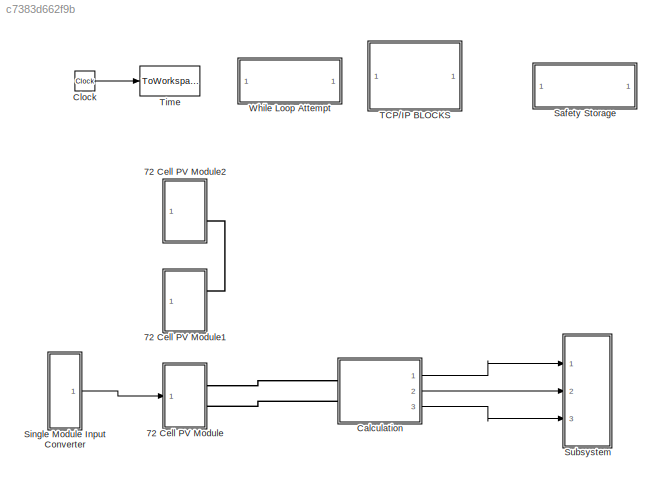
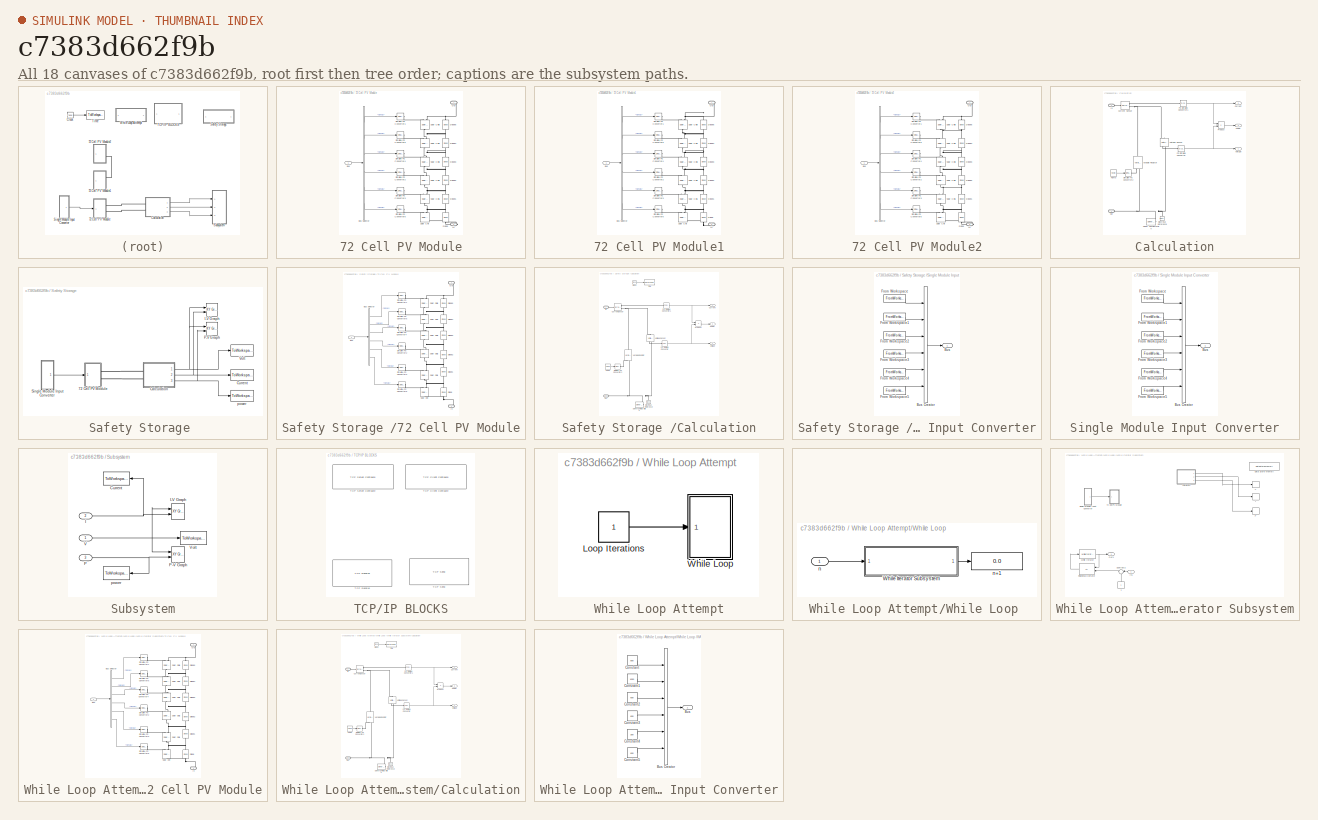
[diagram: thumbnail index - all 18 canvases of the model, root first then tree order]
MODEL slx_c7383d662f9b
KIND model
CONFIG AbsTol = auto
CONFIG EnableMultiTasking = on
CONFIG FixedStep = auto
CONFIG MaxStep = 0.005
CONFIG MinStep = 0.00001
CONFIG RelTol = 1e-3
CONFIG SampleTimeConstraint = Unconstrained
CONFIG Solver = ode15s
CONFIG SolverName = ode15s
CONFIG StartTime = 0.0
CONFIG StopTime = 5
WORKSPACE source: external: MAT-File  (data not in archive)
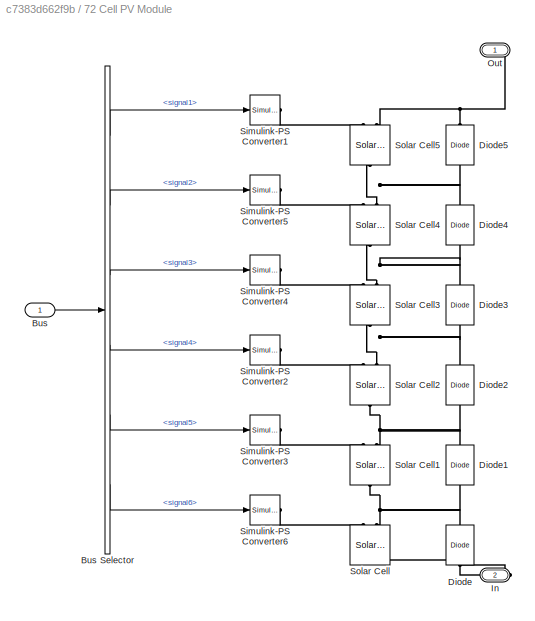
BLOCK [SubSystem] 72 Cell PV Module
  Ports = [1, 0, 0, 0, 0, 0, 2]
  RequestExecContextInheritance = off
  Variant = off
BLOCK [Inport] 72 Cell PV Module/Bus
  IconDisplay = Port number
BLOCK [BusSelector] 72 Cell PV Module/Bus Selector
  OutputAsBus = off
  OutputSignals = signal1,signal2,signal3,signal4,signal5,signal6
  Ports = [1, 6]
BLOCK [Reference] 72 Cell PV Module/Diode  REF=fl_lib/Electrical/Electrical Elements/Diode
  Ports = [0, 0, 0, 0, 0, 1, 1]
  SourceBlock = fl_lib/Electrical/Electrical Elements/Diode
  SourceProductBaseCode = SS
  SourceProductName = Simscape
  SourceType = Diode
BLOCK [Reference] 72 Cell PV Module/Diode1  REF=fl_lib/Electrical/Electrical Elements/Diode
  Ports = [0, 0, 0, 0, 0, 1, 1]
  SourceBlock = fl_lib/Electrical/Electrical Elements/Diode
  SourceProductBaseCode = SS
  SourceProductName = Simscape
  SourceType = Diode
BLOCK [Reference] 72 Cell PV Module/Diode2  REF=fl_lib/Electrical/Electrical Elements/Diode
  Ports = [0, 0, 0, 0, 0, 1, 1]
  SourceBlock = fl_lib/Electrical/Electrical Elements/Diode
  SourceProductBaseCode = SS
  SourceProductName = Simscape
  SourceType = Diode
BLOCK [Reference] 72 Cell PV Module/Diode3  REF=fl_lib/Electrical/Electrical Elements/Diode
  Ports = [0, 0, 0, 0, 0, 1, 1]
  SourceBlock = fl_lib/Electrical/Electrical Elements/Diode
  SourceProductBaseCode = SS
  SourceProductName = Simscape
  SourceType = Diode
BLOCK [Reference] 72 Cell PV Module/Diode4  REF=fl_lib/Electrical/Electrical Elements/Diode
  Ports = [0, 0, 0, 0, 0, 1, 1]
  SourceBlock = fl_lib/Electrical/Electrical Elements/Diode
  SourceProductBaseCode = SS
  SourceProductName = Simscape
  SourceType = Diode
BLOCK [Reference] 72 Cell PV Module/Diode5  REF=fl_lib/Electrical/Electrical Elements/Diode
  Ports = [0, 0, 0, 0, 0, 1, 1]
  SourceBlock = fl_lib/Electrical/Electrical Elements/Diode
  SourceProductBaseCode = SS
  SourceProductName = Simscape
  SourceType = Diode
BLOCK [PMIOPort] 72 Cell PV Module/In
  Port = 2
  Side = Right
BLOCK [PMIOPort] 72 Cell PV Module/Out
  Port = 1
  Side = Right
BLOCK [Reference] 72 Cell PV Module/Simulink-PS Converter1  REF=nesl_utility/Simulink-PS
Converter
  Ports = [1, 0, 0, 0, 0, 0, 1]
  SourceBlock = nesl_utility/Simulink-PS\nConverter
  SourceProductBaseCode = SS
  SourceProductName = Simscape
  SourceType = Simulink-PS\nConverter
BLOCK [Reference] 72 Cell PV Module/Simulink-PS Converter2  REF=nesl_utility/Simulink-PS
Converter
  Ports = [1, 0, 0, 0, 0, 0, 1]
  SourceBlock = nesl_utility/Simulink-PS\nConverter
  SourceProductBaseCode = SS
  SourceProductName = Simscape
  SourceType = Simulink-PS\nConverter
BLOCK [Reference] 72 Cell PV Module/Simulink-PS Converter3  REF=nesl_utility/Simulink-PS
Converter
  Ports = [1, 0, 0, 0, 0, 0, 1]
  SourceBlock = nesl_utility/Simulink-PS\nConverter
  SourceProductBaseCode = SS
  SourceProductName = Simscape
  SourceType = Simulink-PS\nConverter
BLOCK [Reference] 72 Cell PV Module/Simulink-PS Converter4  REF=nesl_utility/Simulink-PS
Converter
  Ports = [1, 0, 0, 0, 0, 0, 1]
  SourceBlock = nesl_utility/Simulink-PS\nConverter
  SourceProductBaseCode = SS
  SourceProductName = Simscape
  SourceType = Simulink-PS\nConverter
BLOCK [Reference] 72 Cell PV Module/Simulink-PS Converter5  REF=nesl_utility/Simulink-PS
Converter
  Ports = [1, 0, 0, 0, 0, 0, 1]
  SourceBlock = nesl_utility/Simulink-PS\nConverter
  SourceProductBaseCode = SS
  SourceProductName = Simscape
  SourceType = Simulink-PS\nConverter
BLOCK [Reference] 72 Cell PV Module/Simulink-PS Converter6  REF=nesl_utility/Simulink-PS
Converter
  Ports = [1, 0, 0, 0, 0, 0, 1]
  SourceBlock = nesl_utility/Simulink-PS\nConverter
  SourceProductBaseCode = SS
  SourceProductName = Simscape
  SourceType = Simulink-PS\nConverter
BLOCK [Reference] 72 Cell PV Module/Solar Cell  REF=elec_lib/Sources/Solar Cell
  Ports = [0, 0, 0, 0, 0, 2, 1]
  SourceBlock = elec_lib/Sources/Solar Cell
  SourceProductBaseCode = SN
  SourceProductName = Simscape Electronics
  SourceType = Solar Cell
BLOCK [Reference] 72 Cell PV Module/Solar Cell1  REF=elec_lib/Sources/Solar Cell
  Ports = [0, 0, 0, 0, 0, 2, 1]
  SourceBlock = elec_lib/Sources/Solar Cell
  SourceProductBaseCode = SN
  SourceProductName = Simscape Electronics
  SourceType = Solar Cell
BLOCK [Reference] 72 Cell PV Module/Solar Cell2  REF=elec_lib/Sources/Solar Cell
  Ports = [0, 0, 0, 0, 0, 2, 1]
  SourceBlock = elec_lib/Sources/Solar Cell
  SourceProductBaseCode = SN
  SourceProductName = Simscape Electronics
  SourceType = Solar Cell
BLOCK [Reference] 72 Cell PV Module/Solar Cell3  REF=elec_lib/Sources/Solar Cell
  Ports = [0, 0, 0, 0, 0, 2, 1]
  SourceBlock = elec_lib/Sources/Solar Cell
  SourceProductBaseCode = SN
  SourceProductName = Simscape Electronics
  SourceType = Solar Cell
BLOCK [Reference] 72 Cell PV Module/Solar Cell4  REF=elec_lib/Sources/Solar Cell
  Ports = [0, 0, 0, 0, 0, 2, 1]
  SourceBlock = elec_lib/Sources/Solar Cell
  SourceProductBaseCode = SN
  SourceProductName = Simscape Electronics
  SourceType = Solar Cell
BLOCK [Reference] 72 Cell PV Module/Solar Cell5  REF=elec_lib/Sources/Solar Cell
  Ports = [0, 0, 0, 0, 0, 2, 1]
  SourceBlock = elec_lib/Sources/Solar Cell
  SourceProductBaseCode = SN
  SourceProductName = Simscape Electronics
  SourceType = Solar Cell
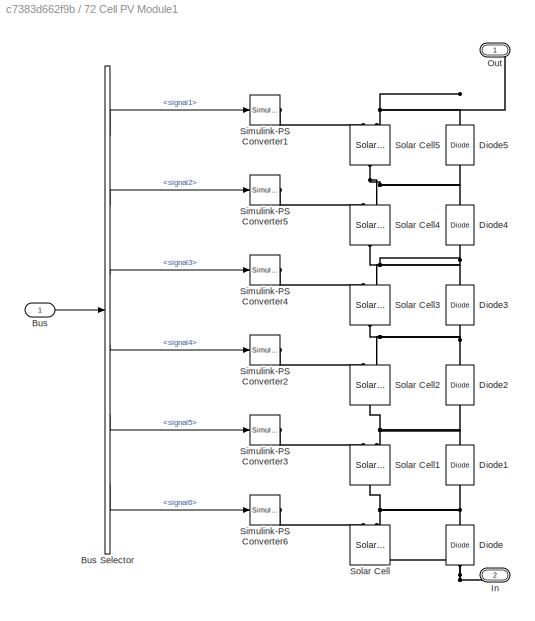
BLOCK [SubSystem] 72 Cell PV Module1
  Commented = on
  Ports = [1, 0, 0, 0, 0, 0, 2]
  RequestExecContextInheritance = off
  Variant = off
BLOCK [Inport] 72 Cell PV Module1/Bus
  IconDisplay = Port number
BLOCK [BusSelector] 72 Cell PV Module1/Bus Selector
  OutputAsBus = off
  OutputSignals = signal1,signal2,signal3,signal4,signal5,signal6
  Ports = [1, 6]
BLOCK [Reference] 72 Cell PV Module1/Diode  REF=fl_lib/Electrical/Electrical Elements/Diode
  Ports = [0, 0, 0, 0, 0, 1, 1]
  SourceBlock = fl_lib/Electrical/Electrical Elements/Diode
  SourceProductBaseCode = SS
  SourceProductName = Simscape
  SourceType = Diode
BLOCK [Reference] 72 Cell PV Module1/Diode1  REF=fl_lib/Electrical/Electrical Elements/Diode
  Ports = [0, 0, 0, 0, 0, 1, 1]
  SourceBlock = fl_lib/Electrical/Electrical Elements/Diode
  SourceProductBaseCode = SS
  SourceProductName = Simscape
  SourceType = Diode
BLOCK [Reference] 72 Cell PV Module1/Diode2  REF=fl_lib/Electrical/Electrical Elements/Diode
  Ports = [0, 0, 0, 0, 0, 1, 1]
  SourceBlock = fl_lib/Electrical/Electrical Elements/Diode
  SourceProductBaseCode = SS
  SourceProductName = Simscape
  SourceType = Diode
BLOCK [Reference] 72 Cell PV Module1/Diode3  REF=fl_lib/Electrical/Electrical Elements/Diode
  Ports = [0, 0, 0, 0, 0, 1, 1]
  SourceBlock = fl_lib/Electrical/Electrical Elements/Diode
  SourceProductBaseCode = SS
  SourceProductName = Simscape
  SourceType = Diode
BLOCK [Reference] 72 Cell PV Module1/Diode4  REF=fl_lib/Electrical/Electrical Elements/Diode
  Ports = [0, 0, 0, 0, 0, 1, 1]
  SourceBlock = fl_lib/Electrical/Electrical Elements/Diode
  SourceProductBaseCode = SS
  SourceProductName = Simscape
  SourceType = Diode
BLOCK [Reference] 72 Cell PV Module1/Diode5  REF=fl_lib/Electrical/Electrical Elements/Diode
  Ports = [0, 0, 0, 0, 0, 1, 1]
  SourceBlock = fl_lib/Electrical/Electrical Elements/Diode
  SourceProductBaseCode = SS
  SourceProductName = Simscape
  SourceType = Diode
BLOCK [PMIOPort] 72 Cell PV Module1/In
  Port = 2
  Side = Right
BLOCK [PMIOPort] 72 Cell PV Module1/Out
  Port = 1
  Side = Right
BLOCK [Reference] 72 Cell PV Module1/Simulink-PS Converter1  REF=nesl_utility/Simulink-PS
Converter
  Ports = [1, 0, 0, 0, 0, 0, 1]
  SourceBlock = nesl_utility/Simulink-PS\nConverter
  SourceProductBaseCode = SS
  SourceProductName = Simscape
  SourceType = Simulink-PS\nConverter
BLOCK [Reference] 72 Cell PV Module1/Simulink-PS Converter2  REF=nesl_utility/Simulink-PS
Converter
  Ports = [1, 0, 0, 0, 0, 0, 1]
  SourceBlock = nesl_utility/Simulink-PS\nConverter
  SourceProductBaseCode = SS
  SourceProductName = Simscape
  SourceType = Simulink-PS\nConverter
BLOCK [Reference] 72 Cell PV Module1/Simulink-PS Converter3  REF=nesl_utility/Simulink-PS
Converter
  Ports = [1, 0, 0, 0, 0, 0, 1]
  SourceBlock = nesl_utility/Simulink-PS\nConverter
  SourceProductBaseCode = SS
  SourceProductName = Simscape
  SourceType = Simulink-PS\nConverter
BLOCK [Reference] 72 Cell PV Module1/Simulink-PS Converter4  REF=nesl_utility/Simulink-PS
Converter
  Ports = [1, 0, 0, 0, 0, 0, 1]
  SourceBlock = nesl_utility/Simulink-PS\nConverter
  SourceProductBaseCode = SS
  SourceProductName = Simscape
  SourceType = Simulink-PS\nConverter
BLOCK [Reference] 72 Cell PV Module1/Simulink-PS Converter5  REF=nesl_utility/Simulink-PS
Converter
  Ports = [1, 0, 0, 0, 0, 0, 1]
  SourceBlock = nesl_utility/Simulink-PS\nConverter
  SourceProductBaseCode = SS
  SourceProductName = Simscape
  SourceType = Simulink-PS\nConverter
BLOCK [Reference] 72 Cell PV Module1/Simulink-PS Converter6  REF=nesl_utility/Simulink-PS
Converter
  Ports = [1, 0, 0, 0, 0, 0, 1]
  SourceBlock = nesl_utility/Simulink-PS\nConverter
  SourceProductBaseCode = SS
  SourceProductName = Simscape
  SourceType = Simulink-PS\nConverter
BLOCK [Reference] 72 Cell PV Module1/Solar Cell  REF=elec_lib/Sources/Solar Cell
  Ports = [0, 0, 0, 0, 0, 2, 1]
  SourceBlock = elec_lib/Sources/Solar Cell
  SourceProductBaseCode = SN
  SourceProductName = Simscape Electronics
  SourceType = Solar Cell
BLOCK [Reference] 72 Cell PV Module1/Solar Cell1  REF=elec_lib/Sources/Solar Cell
  Ports = [0, 0, 0, 0, 0, 2, 1]
  SourceBlock = elec_lib/Sources/Solar Cell
  SourceProductBaseCode = SN
  SourceProductName = Simscape Electronics
  SourceType = Solar Cell
BLOCK [Reference] 72 Cell PV Module1/Solar Cell2  REF=elec_lib/Sources/Solar Cell
  Ports = [0, 0, 0, 0, 0, 2, 1]
  SourceBlock = elec_lib/Sources/Solar Cell
  SourceProductBaseCode = SN
  SourceProductName = Simscape Electronics
  SourceType = Solar Cell
BLOCK [Reference] 72 Cell PV Module1/Solar Cell3  REF=elec_lib/Sources/Solar Cell
  Ports = [0, 0, 0, 0, 0, 2, 1]
  SourceBlock = elec_lib/Sources/Solar Cell
  SourceProductBaseCode = SN
  SourceProductName = Simscape Electronics
  SourceType = Solar Cell
BLOCK [Reference] 72 Cell PV Module1/Solar Cell4  REF=elec_lib/Sources/Solar Cell
  Ports = [0, 0, 0, 0, 0, 2, 1]
  SourceBlock = elec_lib/Sources/Solar Cell
  SourceProductBaseCode = SN
  SourceProductName = Simscape Electronics
  SourceType = Solar Cell
BLOCK [Reference] 72 Cell PV Module1/Solar Cell5  REF=elec_lib/Sources/Solar Cell
  Ports = [0, 0, 0, 0, 0, 2, 1]
  SourceBlock = elec_lib/Sources/Solar Cell
  SourceProductBaseCode = SN
  SourceProductName = Simscape Electronics
  SourceType = Solar Cell
BLOCK [SubSystem] 72 Cell PV Module2
  Commented = on
  Ports = [1, 0, 0, 0, 0, 0, 2]
  RequestExecContextInheritance = off
  Variant = off
BLOCK [Inport] 72 Cell PV Module2/Bus
  IconDisplay = Port number
BLOCK [BusSelector] 72 Cell PV Module2/Bus Selector
  OutputAsBus = off
  OutputSignals = signal1,signal2,signal3,signal4,signal5,signal6
  Ports = [1, 6]
BLOCK [Reference] 72 Cell PV Module2/Diode  REF=fl_lib/Electrical/Electrical Elements/Diode
  Ports = [0, 0, 0, 0, 0, 1, 1]
  SourceBlock = fl_lib/Electrical/Electrical Elements/Diode
  SourceProductBaseCode = SS
  SourceProductName = Simscape
  SourceType = Diode
BLOCK [Reference] 72 Cell PV Module2/Diode1  REF=fl_lib/Electrical/Electrical Elements/Diode
  Ports = [0, 0, 0, 0, 0, 1, 1]
  SourceBlock = fl_lib/Electrical/Electrical Elements/Diode
  SourceProductBaseCode = SS
  SourceProductName = Simscape
  SourceType = Diode
BLOCK [Reference] 72 Cell PV Module2/Diode2  REF=fl_lib/Electrical/Electrical Elements/Diode
  Ports = [0, 0, 0, 0, 0, 1, 1]
  SourceBlock = fl_lib/Electrical/Electrical Elements/Diode
  SourceProductBaseCode = SS
  SourceProductName = Simscape
  SourceType = Diode
BLOCK [Reference] 72 Cell PV Module2/Diode3  REF=fl_lib/Electrical/Electrical Elements/Diode
  Ports = [0, 0, 0, 0, 0, 1, 1]
  SourceBlock = fl_lib/Electrical/Electrical Elements/Diode
  SourceProductBaseCode = SS
  SourceProductName = Simscape
  SourceType = Diode
BLOCK [Reference] 72 Cell PV Module2/Diode4  REF=fl_lib/Electrical/Electrical Elements/Diode
  Ports = [0, 0, 0, 0, 0, 1, 1]
  SourceBlock = fl_lib/Electrical/Electrical Elements/Diode
  SourceProductBaseCode = SS
  SourceProductName = Simscape
  SourceType = Diode
BLOCK [Reference] 72 Cell PV Module2/Diode5  REF=fl_lib/Electrical/Electrical Elements/Diode
  Ports = [0, 0, 0, 0, 0, 1, 1]
  SourceBlock = fl_lib/Electrical/Electrical Elements/Diode
  SourceProductBaseCode = SS
  SourceProductName = Simscape
  SourceType = Diode
BLOCK [PMIOPort] 72 Cell PV Module2/In
  Port = 2
  Side = Right
BLOCK [PMIOPort] 72 Cell PV Module2/Out
  Port = 1
  Side = Right
BLOCK [Reference] 72 Cell PV Module2/Simulink-PS Converter1  REF=nesl_utility/Simulink-PS
Converter
  Ports = [1, 0, 0, 0, 0, 0, 1]
  SourceBlock = nesl_utility/Simulink-PS\nConverter
  SourceProductBaseCode = SS
  SourceProductName = Simscape
  SourceType = Simulink-PS\nConverter
BLOCK [Reference] 72 Cell PV Module2/Simulink-PS Converter2  REF=nesl_utility/Simulink-PS
Converter
  Ports = [1, 0, 0, 0, 0, 0, 1]
  SourceBlock = nesl_utility/Simulink-PS\nConverter
  SourceProductBaseCode = SS
  SourceProductName = Simscape
  SourceType = Simulink-PS\nConverter
BLOCK [Reference] 72 Cell PV Module2/Simulink-PS Converter3  REF=nesl_utility/Simulink-PS
Converter
  Ports = [1, 0, 0, 0, 0, 0, 1]
  SourceBlock = nesl_utility/Simulink-PS\nConverter
  SourceProductBaseCode = SS
  SourceProductName = Simscape
  SourceType = Simulink-PS\nConverter
BLOCK [Reference] 72 Cell PV Module2/Simulink-PS Converter4  REF=nesl_utility/Simulink-PS
Converter
  Ports = [1, 0, 0, 0, 0, 0, 1]
  SourceBlock = nesl_utility/Simulink-PS\nConverter
  SourceProductBaseCode = SS
  SourceProductName = Simscape
  SourceType = Simulink-PS\nConverter
BLOCK [Reference] 72 Cell PV Module2/Simulink-PS Converter5  REF=nesl_utility/Simulink-PS
Converter
  Ports = [1, 0, 0, 0, 0, 0, 1]
  SourceBlock = nesl_utility/Simulink-PS\nConverter
  SourceProductBaseCode = SS
  SourceProductName = Simscape
  SourceType = Simulink-PS\nConverter
BLOCK [Reference] 72 Cell PV Module2/Simulink-PS Converter6  REF=nesl_utility/Simulink-PS
Converter
  Ports = [1, 0, 0, 0, 0, 0, 1]
  SourceBlock = nesl_utility/Simulink-PS\nConverter
  SourceProductBaseCode = SS
  SourceProductName = Simscape
  SourceType = Simulink-PS\nConverter
BLOCK [Reference] 72 Cell PV Module2/Solar Cell  REF=elec_lib/Sources/Solar Cell
  Ports = [0, 0, 0, 0, 0, 2, 1]
  SourceBlock = elec_lib/Sources/Solar Cell
  SourceProductBaseCode = SN
  SourceProductName = Simscape Electronics
  SourceType = Solar Cell
BLOCK [Reference] 72 Cell PV Module2/Solar Cell1  REF=elec_lib/Sources/Solar Cell
  Ports = [0, 0, 0, 0, 0, 2, 1]
  SourceBlock = elec_lib/Sources/Solar Cell
  SourceProductBaseCode = SN
  SourceProductName = Simscape Electronics
  SourceType = Solar Cell
BLOCK [Reference] 72 Cell PV Module2/Solar Cell2  REF=elec_lib/Sources/Solar Cell
  Ports = [0, 0, 0, 0, 0, 2, 1]
  SourceBlock = elec_lib/Sources/Solar Cell
  SourceProductBaseCode = SN
  SourceProductName = Simscape Electronics
  SourceType = Solar Cell
BLOCK [Reference] 72 Cell PV Module2/Solar Cell3  REF=elec_lib/Sources/Solar Cell
  Ports = [0, 0, 0, 0, 0, 2, 1]
  SourceBlock = elec_lib/Sources/Solar Cell
  SourceProductBaseCode = SN
  SourceProductName = Simscape Electronics
  SourceType = Solar Cell
BLOCK [Reference] 72 Cell PV Module2/Solar Cell4  REF=elec_lib/Sources/Solar Cell
  Ports = [0, 0, 0, 0, 0, 2, 1]
  SourceBlock = elec_lib/Sources/Solar Cell
  SourceProductBaseCode = SN
  SourceProductName = Simscape Electronics
  SourceType = Solar Cell
BLOCK [Reference] 72 Cell PV Module2/Solar Cell5  REF=elec_lib/Sources/Solar Cell
  Ports = [0, 0, 0, 0, 0, 2, 1]
  SourceBlock = elec_lib/Sources/Solar Cell
  SourceProductBaseCode = SN
  SourceProductName = Simscape Electronics
  SourceType = Solar Cell
BLOCK [SubSystem] Calculation
  Ports = [0, 3, 0, 0, 0, 2]
  RequestExecContextInheritance = off
  Variant = off
BLOCK [Outport] Calculation/Current
  IconDisplay = Port number
  Port = 2
BLOCK [Reference] Calculation/Current Sensor  REF=fl_lib/Electrical/Electrical Sensors/Current Sensor
  Ports = [0, 0, 0, 0, 0, 1, 2]
  SourceBlock = fl_lib/Electrical/Electrical Sensors/Current Sensor
  SourceProductBaseCode = SS
  SourceProductName = Simscape
  SourceType = Current Sensor
BLOCK [Reference] Calculation/Electrical Reference  REF=fl_lib/Electrical/Electrical Elements/Electrical Reference
  Ports = [0, 0, 0, 0, 0, 1]
  SourceBlock = fl_lib/Electrical/Electrical Elements/Electrical Reference
  SourceProductBaseCode = SS
  SourceProductName = Simscape
  SourceType = Electrical Reference
BLOCK [PMIOPort] Calculation/In
  Port = 1
  Side = Left
BLOCK [PMIOPort] Calculation/Out
  Port = 2
  Side = Left
BLOCK [Reference] Calculation/PS-Simulink Converter  REF=nesl_utility/PS-Simulink
Converter
  Ports = [0, 1, 0, 0, 0, 1]
  SourceBlock = nesl_utility/PS-Simulink\nConverter
  SourceProductBaseCode = SS
  SourceProductName = Simscape
  SourceType = PS-Simulink\nConverter
BLOCK [Reference] Calculation/PS-Simulink Converter1  REF=nesl_utility/PS-Simulink
Converter
  Ports = [0, 1, 0, 0, 0, 1]
  SourceBlock = nesl_utility/PS-Simulink\nConverter
  SourceProductBaseCode = SS
  SourceProductName = Simscape
  SourceType = PS-Simulink\nConverter
BLOCK [Outport] Calculation/Power
  IconDisplay = Port number
  Port = 3
BLOCK [Product] Calculation/Product
  Commented = on
  InputSameDT = off
  OutDataTypeStr = Inherit: Inherit via internal rule
  Ports = [2, 1]
  RndMeth = Floor
  SaturateOnIntegerOverflow = off
BLOCK [Reference] Calculation/Ramp  REF=simulink/Sources/Ramp
  Ports = [0, 1]
  SourceBlock = simulink/Sources/Ramp
  SourceProductBaseCode = SL
  SourceProductName = Simulink
  SourceType = Ramp
BLOCK [Reference] Calculation/Simulink-PS Converter2  REF=nesl_utility/Simulink-PS
Converter
  Ports = [1, 0, 0, 0, 0, 0, 1]
  SourceBlock = nesl_utility/Simulink-PS\nConverter
  SourceProductBaseCode = SS
  SourceProductName = Simscape
  SourceType = Simulink-PS\nConverter
BLOCK [Reference] Calculation/Solver Configuration  REF=nesl_utility/Solver
Configuration
  Ports = [0, 0, 0, 0, 0, 0, 1]
  SourceBlock = nesl_utility/Solver\nConfiguration
  SourceProductBaseCode = SS
  SourceProductName = Simscape
  SourceType = Solver\nConfiguration
BLOCK [Reference] Calculation/Variable Resistor  REF=fl_lib/Electrical/Electrical Elements/Variable Resistor
  Ports = [0, 0, 0, 0, 0, 2, 1]
  SourceBlock = fl_lib/Electrical/Electrical Elements/Variable Resistor
  SourceProductBaseCode = SS
  SourceProductName = Simscape
  SourceType = Variable Resistor
BLOCK [Outport] Calculation/Voltage
  IconDisplay = Port number
BLOCK [Reference] Calculation/Voltage Sensor  REF=fl_lib/Electrical/Electrical Sensors/Voltage Sensor
  Ports = [0, 0, 0, 0, 0, 1, 2]
  SourceBlock = fl_lib/Electrical/Electrical Sensors/Voltage Sensor
  SourceProductBaseCode = SS
  SourceProductName = Simscape
  SourceType = Voltage Sensor
BLOCK [Clock] Clock
  Decimation = 5
BLOCK [SubSystem] Safety Storage 
  Commented = on
  Ports = []
  RequestExecContextInheritance = off
  Variant = off
BLOCK [SubSystem] Safety Storage /72 Cell PV Module
  Commented = on
  Ports = [1, 0, 0, 0, 0, 0, 2]
  RequestExecContextInheritance = off
  Variant = off
BLOCK [Inport] Safety Storage /72 Cell PV Module/Bus
  IconDisplay = Port number
BLOCK [BusSelector] Safety Storage /72 Cell PV Module/Bus Selector
  OutputAsBus = off
  OutputSignals = signal1,signal2,signal3,signal4,signal5,signal6
  Ports = [1, 6]
BLOCK [Reference] Safety Storage /72 Cell PV Module/Diode  REF=fl_lib/Electrical/Electrical Elements/Diode
  Ports = [0, 0, 0, 0, 0, 1, 1]
  SourceBlock = fl_lib/Electrical/Electrical Elements/Diode
  SourceProductBaseCode = SS
  SourceProductName = Simscape
  SourceType = Diode
BLOCK [Reference] Safety Storage /72 Cell PV Module/Diode1  REF=fl_lib/Electrical/Electrical Elements/Diode
  Ports = [0, 0, 0, 0, 0, 1, 1]
  SourceBlock = fl_lib/Electrical/Electrical Elements/Diode
  SourceProductBaseCode = SS
  SourceProductName = Simscape
  SourceType = Diode
BLOCK [Reference] Safety Storage /72 Cell PV Module/Diode2  REF=fl_lib/Electrical/Electrical Elements/Diode
  Ports = [0, 0, 0, 0, 0, 1, 1]
  SourceBlock = fl_lib/Electrical/Electrical Elements/Diode
  SourceProductBaseCode = SS
  SourceProductName = Simscape
  SourceType = Diode
BLOCK [Reference] Safety Storage /72 Cell PV Module/Diode3  REF=fl_lib/Electrical/Electrical Elements/Diode
  Ports = [0, 0, 0, 0, 0, 1, 1]
  SourceBlock = fl_lib/Electrical/Electrical Elements/Diode
  SourceProductBaseCode = SS
  SourceProductName = Simscape
  SourceType = Diode
BLOCK [Reference] Safety Storage /72 Cell PV Module/Diode4  REF=fl_lib/Electrical/Electrical Elements/Diode
  Ports = [0, 0, 0, 0, 0, 1, 1]
  SourceBlock = fl_lib/Electrical/Electrical Elements/Diode
  SourceProductBaseCode = SS
  SourceProductName = Simscape
  SourceType = Diode
BLOCK [Reference] Safety Storage /72 Cell PV Module/Diode5  REF=fl_lib/Electrical/Electrical Elements/Diode
  Ports = [0, 0, 0, 0, 0, 1, 1]
  SourceBlock = fl_lib/Electrical/Electrical Elements/Diode
  SourceProductBaseCode = SS
  SourceProductName = Simscape
  SourceType = Diode
BLOCK [PMIOPort] Safety Storage /72 Cell PV Module/In
  Port = 2
  Side = Right
BLOCK [PMIOPort] Safety Storage /72 Cell PV Module/Out
  Port = 1
  Side = Right
BLOCK [Reference] Safety Storage /72 Cell PV Module/Simulink-PS Converter1  REF=nesl_utility/Simulink-PS
Converter
  Ports = [1, 0, 0, 0, 0, 0, 1]
  SourceBlock = nesl_utility/Simulink-PS\nConverter
  SourceProductBaseCode = SS
  SourceProductName = Simscape
  SourceType = Simulink-PS\nConverter
BLOCK [Reference] Safety Storage /72 Cell PV Module/Simulink-PS Converter2  REF=nesl_utility/Simulink-PS
Converter
  Ports = [1, 0, 0, 0, 0, 0, 1]
  SourceBlock = nesl_utility/Simulink-PS\nConverter
  SourceProductBaseCode = SS
  SourceProductName = Simscape
  SourceType = Simulink-PS\nConverter
BLOCK [Reference] Safety Storage /72 Cell PV Module/Simulink-PS Converter3  REF=nesl_utility/Simulink-PS
Converter
  Ports = [1, 0, 0, 0, 0, 0, 1]
  SourceBlock = nesl_utility/Simulink-PS\nConverter
  SourceProductBaseCode = SS
  SourceProductName = Simscape
  SourceType = Simulink-PS\nConverter
BLOCK [Reference] Safety Storage /72 Cell PV Module/Simulink-PS Converter4  REF=nesl_utility/Simulink-PS
Converter
  Ports = [1, 0, 0, 0, 0, 0, 1]
  SourceBlock = nesl_utility/Simulink-PS\nConverter
  SourceProductBaseCode = SS
  SourceProductName = Simscape
  SourceType = Simulink-PS\nConverter
BLOCK [Reference] Safety Storage /72 Cell PV Module/Simulink-PS Converter5  REF=nesl_utility/Simulink-PS
Converter
  Ports = [1, 0, 0, 0, 0, 0, 1]
  SourceBlock = nesl_utility/Simulink-PS\nConverter
  SourceProductBaseCode = SS
  SourceProductName = Simscape
  SourceType = Simulink-PS\nConverter
BLOCK [Reference] Safety Storage /72 Cell PV Module/Simulink-PS Converter6  REF=nesl_utility/Simulink-PS
Converter
  Ports = [1, 0, 0, 0, 0, 0, 1]
  SourceBlock = nesl_utility/Simulink-PS\nConverter
  SourceProductBaseCode = SS
  SourceProductName = Simscape
  SourceType = Simulink-PS\nConverter
BLOCK [Reference] Safety Storage /72 Cell PV Module/Solar Cell  REF=elec_lib/Sources/Solar Cell
  Ports = [0, 0, 0, 0, 0, 2, 1]
  SourceBlock = elec_lib/Sources/Solar Cell
  SourceProductBaseCode = SN
  SourceProductName = Simscape Electronics
  SourceType = Solar Cell
BLOCK [Reference] Safety Storage /72 Cell PV Module/Solar Cell1  REF=elec_lib/Sources/Solar Cell
  Ports = [0, 0, 0, 0, 0, 2, 1]
  SourceBlock = elec_lib/Sources/Solar Cell
  SourceProductBaseCode = SN
  SourceProductName = Simscape Electronics
  SourceType = Solar Cell
BLOCK [Reference] Safety Storage /72 Cell PV Module/Solar Cell2  REF=elec_lib/Sources/Solar Cell
  Ports = [0, 0, 0, 0, 0, 2, 1]
  SourceBlock = elec_lib/Sources/Solar Cell
  SourceProductBaseCode = SN
  SourceProductName = Simscape Electronics
  SourceType = Solar Cell
BLOCK [Reference] Safety Storage /72 Cell PV Module/Solar Cell3  REF=elec_lib/Sources/Solar Cell
  Ports = [0, 0, 0, 0, 0, 2, 1]
  SourceBlock = elec_lib/Sources/Solar Cell
  SourceProductBaseCode = SN
  SourceProductName = Simscape Electronics
  SourceType = Solar Cell
BLOCK [Reference] Safety Storage /72 Cell PV Module/Solar Cell4  REF=elec_lib/Sources/Solar Cell
  Ports = [0, 0, 0, 0, 0, 2, 1]
  SourceBlock = elec_lib/Sources/Solar Cell
  SourceProductBaseCode = SN
  SourceProductName = Simscape Electronics
  SourceType = Solar Cell
BLOCK [Reference] Safety Storage /72 Cell PV Module/Solar Cell5  REF=elec_lib/Sources/Solar Cell
  Ports = [0, 0, 0, 0, 0, 2, 1]
  SourceBlock = elec_lib/Sources/Solar Cell
  SourceProductBaseCode = SN
  SourceProductName = Simscape Electronics
  SourceType = Solar Cell
BLOCK [SubSystem] Safety Storage /Calculation
  Commented = on
  Ports = [0, 3, 0, 0, 0, 2]
  RequestExecContextInheritance = off
  Variant = off
BLOCK [Clock] Safety Storage /Calculation/Clock
  Decimation = 5
BLOCK [Outport] Safety Storage /Calculation/Current
  IconDisplay = Port number
  Port = 2
BLOCK [Reference] Safety Storage /Calculation/Current Sensor  REF=fl_lib/Electrical/Electrical Sensors/Current Sensor
  Ports = [0, 0, 0, 0, 0, 1, 2]
  SourceBlock = fl_lib/Electrical/Electrical Sensors/Current Sensor
  SourceProductBaseCode = SS
  SourceProductName = Simscape
  SourceType = Current Sensor
BLOCK [Reference] Safety Storage /Calculation/Electrical Reference  REF=fl_lib/Electrical/Electrical Elements/Electrical Reference
  Ports = [0, 0, 0, 0, 0, 1]
  SourceBlock = fl_lib/Electrical/Electrical Elements/Electrical Reference
  SourceProductBaseCode = SS
  SourceProductName = Simscape
  SourceType = Electrical Reference
BLOCK [PMIOPort] Safety Storage /Calculation/In
  Port = 1
  Side = Left
BLOCK [PMIOPort] Safety Storage /Calculation/Out
  Port = 2
  Side = Left
BLOCK [Reference] Safety Storage /Calculation/PS-Simulink Converter  REF=nesl_utility/PS-Simulink
Converter
  Ports = [0, 1, 0, 0, 0, 1]
  SourceBlock = nesl_utility/PS-Simulink\nConverter
  SourceProductBaseCode = SS
  SourceProductName = Simscape
  SourceType = PS-Simulink\nConverter
BLOCK [Reference] Safety Storage /Calculation/PS-Simulink Converter1  REF=nesl_utility/PS-Simulink
Converter
  Ports = [0, 1, 0, 0, 0, 1]
  SourceBlock = nesl_utility/PS-Simulink\nConverter
  SourceProductBaseCode = SS
  SourceProductName = Simscape
  SourceType = PS-Simulink\nConverter
BLOCK [Outport] Safety Storage /Calculation/Power
  IconDisplay = Port number
  Port = 3
BLOCK [Product] Safety Storage /Calculation/Product
  InputSameDT = off
  OutDataTypeStr = Inherit: Inherit via internal rule
  Ports = [2, 1]
  RndMeth = Floor
  SaturateOnIntegerOverflow = off
BLOCK [Reference] Safety Storage /Calculation/Ramp  REF=simulink/Sources/Ramp
  Ports = [0, 1]
  SourceBlock = simulink/Sources/Ramp
  SourceProductBaseCode = SL
  SourceProductName = Simulink
  SourceType = Ramp
BLOCK [Reference] Safety Storage /Calculation/Simulink-PS Converter2  REF=nesl_utility/Simulink-PS
Converter
  Ports = [1, 0, 0, 0, 0, 0, 1]
  SourceBlock = nesl_utility/Simulink-PS\nConverter
  SourceProductBaseCode = SS
  SourceProductName = Simscape
  SourceType = Simulink-PS\nConverter
BLOCK [Reference] Safety Storage /Calculation/Solver Configuration  REF=nesl_utility/Solver
Configuration
  Ports = [0, 0, 0, 0, 0, 0, 1]
  SourceBlock = nesl_utility/Solver\nConfiguration
  SourceProductBaseCode = SS
  SourceProductName = Simscape
  SourceType = Solver\nConfiguration
BLOCK [ToWorkspace] Safety Storage /Calculation/Time 
  FixptAsFi = on
  MaxDataPoints = inf
  Ports = [1]
  SampleTime = -1
  Save2DSignal = 3-D array (concatenate along third dimension)
  SaveFormat = Timeseries
  VariableName = t
BLOCK [Reference] Safety Storage /Calculation/Variable Resistor  REF=fl_lib/Electrical/Electrical Elements/Variable Resistor
  Ports = [0, 0, 0, 0, 0, 2, 1]
  SourceBlock = fl_lib/Electrical/Electrical Elements/Variable Resistor
  SourceProductBaseCode = SS
  SourceProductName = Simscape
  SourceType = Variable Resistor
BLOCK [Outport] Safety Storage /Calculation/Voltage
  IconDisplay = Port number
BLOCK [Reference] Safety Storage /Calculation/Voltage Sensor  REF=fl_lib/Electrical/Electrical Sensors/Voltage Sensor
  Ports = [0, 0, 0, 0, 0, 1, 2]
  SourceBlock = fl_lib/Electrical/Electrical Sensors/Voltage Sensor
  SourceProductBaseCode = SS
  SourceProductName = Simscape
  SourceType = Voltage Sensor
BLOCK [ToWorkspace] Safety Storage /Current
  Commented = on
  FixptAsFi = on
  MaxDataPoints = inf
  Ports = [1]
  SampleTime = -1
  Save2DSignal = 2-D array (concatenate along first dimension)
  VariableName = i1
BLOCK [Reference] Safety Storage /I-V Graph   REF=simulink/Sinks/XY Graph
  Commented = on
  Ports = [2]
  SourceBlock = simulink/Sinks/XY Graph
  SourceProductBaseCode = SL
  SourceProductName = Simulink
  SourceType = XY scope.
BLOCK [Reference] Safety Storage /P-V Graph  REF=simulink/Sinks/XY Graph
  Commented = on
  Ports = [2]
  SourceBlock = simulink/Sinks/XY Graph
  SourceProductBaseCode = SL
  SourceProductName = Simulink
  SourceType = XY scope.
BLOCK [SubSystem] Safety Storage /Single Module Input Converter
  Commented = on
  Ports = [0, 1]
  RequestExecContextInheritance = off
  Variant = off
BLOCK [Outport] Safety Storage /Single Module Input Converter/Bus
  IconDisplay = Port number
BLOCK [BusCreator] Safety Storage /Single Module Input Converter/Bus Creator
  DisplayOption = bar
  InheritFromInputs = on
  Inputs = 6
  Ports = [6, 1]
BLOCK [FromWorkspace] Safety Storage /Single Module Input Converter/From Workspace
  OutDataTypeStr = double
  SampleTime = 0
  VariableName = a
  ZeroCross = on
BLOCK [FromWorkspace] Safety Storage /Single Module Input Converter/From Workspace1
  OutDataTypeStr = double
  SampleTime = 0
  VariableName = b
  ZeroCross = on
BLOCK [FromWorkspace] Safety Storage /Single Module Input Converter/From Workspace2
  OutDataTypeStr = double
  SampleTime = 0
  VariableName = c
  ZeroCross = on
BLOCK [FromWorkspace] Safety Storage /Single Module Input Converter/From Workspace3
  OutDataTypeStr = double
  SampleTime = 0
  VariableName = d
  ZeroCross = on
BLOCK [FromWorkspace] Safety Storage /Single Module Input Converter/From Workspace4
  OutDataTypeStr = double
  SampleTime = 0
  VariableName = e
  ZeroCross = on
BLOCK [FromWorkspace] Safety Storage /Single Module Input Converter/From Workspace5
  OutDataTypeStr = double
  SampleTime = 0
  VariableName = f
  ZeroCross = on
BLOCK [ToWorkspace] Safety Storage /Volt
  Commented = on
  FixptAsFi = on
  MaxDataPoints = inf
  Ports = [1]
  SampleTime = -1
  Save2DSignal = 2-D array (concatenate along first dimension)
  VariableName = v1
BLOCK [ToWorkspace] Safety Storage /power
  Commented = on
  FixptAsFi = on
  MaxDataPoints = inf
  Ports = [1]
  SampleTime = -1
  Save2DSignal = 2-D array (concatenate along first dimension)
  VariableName = p1
BLOCK [SubSystem] Single Module Input Converter
  Ports = [0, 1]
  RequestExecContextInheritance = off
  Variant = off
BLOCK [Outport] Single Module Input Converter/Bus
  IconDisplay = Port number
BLOCK [BusCreator] Single Module Input Converter/Bus Creator
  DisplayOption = bar
  InheritFromInputs = on
  Inputs = 6
  Ports = [6, 1]
BLOCK [FromWorkspace] Single Module Input Converter/From Workspace
  OutDataTypeStr = double
  SampleTime = 0
  VariableName = a
  ZeroCross = on
BLOCK [FromWorkspace] Single Module Input Converter/From Workspace1
  OutDataTypeStr = double
  SampleTime = 0
  VariableName = b
  ZeroCross = on
BLOCK [FromWorkspace] Single Module Input Converter/From Workspace2
  OutDataTypeStr = double
  SampleTime = 0
  VariableName = c
  ZeroCross = on
BLOCK [FromWorkspace] Single Module Input Converter/From Workspace3
  OutDataTypeStr = double
  SampleTime = 0
  VariableName = d
  ZeroCross = on
BLOCK [FromWorkspace] Single Module Input Converter/From Workspace4
  OutDataTypeStr = double
  SampleTime = 0
  VariableName = e
  ZeroCross = on
BLOCK [FromWorkspace] Single Module Input Converter/From Workspace5
  OutDataTypeStr = double
  SampleTime = 0
  VariableName = f
  ZeroCross = on
BLOCK [SubSystem] Subsystem
  Ports = [3]
  RequestExecContextInheritance = off
  Variant = off
BLOCK [ToWorkspace] Subsystem/Current
  FixptAsFi = on
  MaxDataPoints = inf
  Ports = [1]
  SampleTime = -1
  Save2DSignal = 2-D array (concatenate along first dimension)
  VariableName = i
BLOCK [Inport] Subsystem/I
  IconDisplay = Port number
  Port = 2
BLOCK [Reference] Subsystem/I-V Graph   REF=simulink/Sinks/XY Graph
  Commented = on
  Ports = [2]
  SourceBlock = simulink/Sinks/XY Graph
  SourceProductBaseCode = SL
  SourceProductName = Simulink
  SourceType = XY scope.
BLOCK [Inport] Subsystem/P
  IconDisplay = Port number
  Port = 3
BLOCK [Reference] Subsystem/P-V Graph  REF=simulink/Sinks/XY Graph
  Commented = on
  Ports = [2]
  SourceBlock = simulink/Sinks/XY Graph
  SourceProductBaseCode = SL
  SourceProductName = Simulink
  SourceType = XY scope.
BLOCK [Inport] Subsystem/V
  IconDisplay = Port number
BLOCK [ToWorkspace] Subsystem/Volt
  FixptAsFi = on
  MaxDataPoints = inf
  Ports = [1]
  SampleTime = -1
  Save2DSignal = 2-D array (concatenate along first dimension)
  VariableName = v
BLOCK [ToWorkspace] Subsystem/power
  FixptAsFi = on
  MaxDataPoints = inf
  Ports = [1]
  SampleTime = -1
  Save2DSignal = 2-D array (concatenate along first dimension)
  VariableName = p
BLOCK [SubSystem] TCP//IP BLOCKS
  Commented = on
  Ports = []
  RequestExecContextInheritance = off
  Variant = off
BLOCK [Reference] TCP//IP BLOCKS/TCP Client Configure  REF=slrttcplib/TCP Client Configure
  Ports = [1, 1]
  Priority = -1
  SourceBlock = slrttcplib/TCP Client Configure
  SourceProductBaseCode = XP
  SourceProductName = Simulink Real-Time
  SourceType = slrttcpclientconfig
BLOCK [Reference] TCP//IP BLOCKS/TCP Receive  REF=slrttcplib/TCP Receive
  Ports = [1, 2]
  SourceBlock = slrttcplib/TCP Receive
  SourceProductBaseCode = XP
  SourceProductName = Simulink Real-Time
  SourceType = slrttcpreceive
BLOCK [Reference] TCP//IP BLOCKS/TCP Send  REF=slrttcplib/TCP Send
  Ports = [3, 1]
  SourceBlock = slrttcplib/TCP Send
  SourceProductBaseCode = XP
  SourceProductName = Simulink Real-Time
  SourceType = slrttcpsend
BLOCK [Reference] TCP//IP BLOCKS/TCP Server Configure  REF=slrttcplib/TCP Server Configure
  Ports = [1, 1]
  Priority = -1
  SourceBlock = slrttcplib/TCP Server Configure
  SourceProductBaseCode = XP
  SourceProductName = Simulink Real-Time
  SourceType = slrttcpserverconfig
BLOCK [ToWorkspace] Time 
  FixptAsFi = on
  MaxDataPoints = inf
  Ports = [1]
  SampleTime = -1
  Save2DSignal = 3-D array (concatenate along third dimension)
  SaveFormat = Timeseries
  VariableName = t
BLOCK [SubSystem] While Loop Attempt
  Commented = on
  Ports = []
  RequestExecContextInheritance = off
  Variant = off
BLOCK [Constant] While Loop Attempt/Loop Iterations
  Commented = on
  VectorParams1D = off
BLOCK [SubSystem] While Loop Attempt/While Loop 
  Commented = on
  Ports = [1]
  RequestExecContextInheritance = off
  Variant = off
BLOCK [SubSystem] While Loop Attempt/While Loop /While Iterator Subsystem
  Ports = [1, 1]
  RequestExecContextInheritance = off
  TreatAsAtomicUnit = on
  Variant = off
BLOCK [Constant] While Loop Attempt/While Loop /While Iterator Subsystem/1
  VectorParams1D = off
BLOCK [SubSystem] While Loop Attempt/While Loop /While Iterator Subsystem/72 Cell PV Module
  Ports = [1, 0, 0, 0, 0, 0, 2]
  RequestExecContextInheritance = off
  Variant = off
BLOCK [Inport] While Loop Attempt/While Loop /While Iterator Subsystem/72 Cell PV Module/Bus
  IconDisplay = Port number
BLOCK [BusSelector] While Loop Attempt/While Loop /While Iterator Subsystem/72 Cell PV Module/Bus Selector
  OutputAsBus = off
  OutputSignals = signal1,signal2,signal3,signal4,signal5,signal6
  Ports = [1, 6]
BLOCK [Reference] While Loop Attempt/While Loop /While Iterator Subsystem/72 Cell PV Module/Diode  REF=fl_lib/Electrical/Electrical Elements/Diode
  Ports = [0, 0, 0, 0, 0, 1, 1]
  SourceBlock = fl_lib/Electrical/Electrical Elements/Diode
  SourceProductBaseCode = SS
  SourceProductName = Simscape
  SourceType = Diode
BLOCK [Reference] While Loop Attempt/While Loop /While Iterator Subsystem/72 Cell PV Module/Diode1  REF=fl_lib/Electrical/Electrical Elements/Diode
  Ports = [0, 0, 0, 0, 0, 1, 1]
  SourceBlock = fl_lib/Electrical/Electrical Elements/Diode
  SourceProductBaseCode = SS
  SourceProductName = Simscape
  SourceType = Diode
BLOCK [Reference] While Loop Attempt/While Loop /While Iterator Subsystem/72 Cell PV Module/Diode2  REF=fl_lib/Electrical/Electrical Elements/Diode
  Ports = [0, 0, 0, 0, 0, 1, 1]
  SourceBlock = fl_lib/Electrical/Electrical Elements/Diode
  SourceProductBaseCode = SS
  SourceProductName = Simscape
  SourceType = Diode
BLOCK [Reference] While Loop Attempt/While Loop /While Iterator Subsystem/72 Cell PV Module/Diode3  REF=fl_lib/Electrical/Electrical Elements/Diode
  Ports = [0, 0, 0, 0, 0, 1, 1]
  SourceBlock = fl_lib/Electrical/Electrical Elements/Diode
  SourceProductBaseCode = SS
  SourceProductName = Simscape
  SourceType = Diode
BLOCK [Reference] While Loop Attempt/While Loop /While Iterator Subsystem/72 Cell PV Module/Diode4  REF=fl_lib/Electrical/Electrical Elements/Diode
  Ports = [0, 0, 0, 0, 0, 1, 1]
  SourceBlock = fl_lib/Electrical/Electrical Elements/Diode
  SourceProductBaseCode = SS
  SourceProductName = Simscape
  SourceType = Diode
BLOCK [Reference] While Loop Attempt/While Loop /While Iterator Subsystem/72 Cell PV Module/Diode5  REF=fl_lib/Electrical/Electrical Elements/Diode
  Ports = [0, 0, 0, 0, 0, 1, 1]
  SourceBlock = fl_lib/Electrical/Electrical Elements/Diode
  SourceProductBaseCode = SS
  SourceProductName = Simscape
  SourceType = Diode
BLOCK [PMIOPort] While Loop Attempt/While Loop /While Iterator Subsystem/72 Cell PV Module/In
  Port = 2
  Side = Right
BLOCK [PMIOPort] While Loop Attempt/While Loop /While Iterator Subsystem/72 Cell PV Module/Out
  Port = 1
  Side = Right
BLOCK [Reference] While Loop Attempt/While Loop /While Iterator Subsystem/72 Cell PV Module/Simulink-PS Converter1  REF=nesl_utility/Simulink-PS
Converter
  Ports = [1, 0, 0, 0, 0, 0, 1]
  SourceBlock = nesl_utility/Simulink-PS\nConverter
  SourceProductBaseCode = SS
  SourceProductName = Simscape
  SourceType = Simulink-PS\nConverter
BLOCK [Reference] While Loop Attempt/While Loop /While Iterator Subsystem/72 Cell PV Module/Simulink-PS Converter2  REF=nesl_utility/Simulink-PS
Converter
  Ports = [1, 0, 0, 0, 0, 0, 1]
  SourceBlock = nesl_utility/Simulink-PS\nConverter
  SourceProductBaseCode = SS
  SourceProductName = Simscape
  SourceType = Simulink-PS\nConverter
BLOCK [Reference] While Loop Attempt/While Loop /While Iterator Subsystem/72 Cell PV Module/Simulink-PS Converter3  REF=nesl_utility/Simulink-PS
Converter
  Ports = [1, 0, 0, 0, 0, 0, 1]
  SourceBlock = nesl_utility/Simulink-PS\nConverter
  SourceProductBaseCode = SS
  SourceProductName = Simscape
  SourceType = Simulink-PS\nConverter
BLOCK [Reference] While Loop Attempt/While Loop /While Iterator Subsystem/72 Cell PV Module/Simulink-PS Converter4  REF=nesl_utility/Simulink-PS
Converter
  Ports = [1, 0, 0, 0, 0, 0, 1]
  SourceBlock = nesl_utility/Simulink-PS\nConverter
  SourceProductBaseCode = SS
  SourceProductName = Simscape
  SourceType = Simulink-PS\nConverter
BLOCK [Reference] While Loop Attempt/While Loop /While Iterator Subsystem/72 Cell PV Module/Simulink-PS Converter5  REF=nesl_utility/Simulink-PS
Converter
  Ports = [1, 0, 0, 0, 0, 0, 1]
  SourceBlock = nesl_utility/Simulink-PS\nConverter
  SourceProductBaseCode = SS
  SourceProductName = Simscape
  SourceType = Simulink-PS\nConverter
BLOCK [Reference] While Loop Attempt/While Loop /While Iterator Subsystem/72 Cell PV Module/Simulink-PS Converter6  REF=nesl_utility/Simulink-PS
Converter
  Ports = [1, 0, 0, 0, 0, 0, 1]
  SourceBlock = nesl_utility/Simulink-PS\nConverter
  SourceProductBaseCode = SS
  SourceProductName = Simscape
  SourceType = Simulink-PS\nConverter
BLOCK [Reference] While Loop Attempt/While Loop /While Iterator Subsystem/72 Cell PV Module/Solar Cell  REF=elec_lib/Sources/Solar Cell
  Ports = [0, 0, 0, 0, 0, 2, 1]
  SourceBlock = elec_lib/Sources/Solar Cell
  SourceProductBaseCode = SN
  SourceProductName = Simscape Electronics
  SourceType = Solar Cell
BLOCK [Reference] While Loop Attempt/While Loop /While Iterator Subsystem/72 Cell PV Module/Solar Cell1  REF=elec_lib/Sources/Solar Cell
  Ports = [0, 0, 0, 0, 0, 2, 1]
  SourceBlock = elec_lib/Sources/Solar Cell
  SourceProductBaseCode = SN
  SourceProductName = Simscape Electronics
  SourceType = Solar Cell
BLOCK [Reference] While Loop Attempt/While Loop /While Iterator Subsystem/72 Cell PV Module/Solar Cell2  REF=elec_lib/Sources/Solar Cell
  Ports = [0, 0, 0, 0, 0, 2, 1]
  SourceBlock = elec_lib/Sources/Solar Cell
  SourceProductBaseCode = SN
  SourceProductName = Simscape Electronics
  SourceType = Solar Cell
BLOCK [Reference] While Loop Attempt/While Loop /While Iterator Subsystem/72 Cell PV Module/Solar Cell3  REF=elec_lib/Sources/Solar Cell
  Ports = [0, 0, 0, 0, 0, 2, 1]
  SourceBlock = elec_lib/Sources/Solar Cell
  SourceProductBaseCode = SN
  SourceProductName = Simscape Electronics
  SourceType = Solar Cell
BLOCK [Reference] While Loop Attempt/While Loop /While Iterator Subsystem/72 Cell PV Module/Solar Cell4  REF=elec_lib/Sources/Solar Cell
  Ports = [0, 0, 0, 0, 0, 2, 1]
  SourceBlock = elec_lib/Sources/Solar Cell
  SourceProductBaseCode = SN
  SourceProductName = Simscape Electronics
  SourceType = Solar Cell
BLOCK [Reference] While Loop Attempt/While Loop /While Iterator Subsystem/72 Cell PV Module/Solar Cell5  REF=elec_lib/Sources/Solar Cell
  Ports = [0, 0, 0, 0, 0, 2, 1]
  SourceBlock = elec_lib/Sources/Solar Cell
  SourceProductBaseCode = SN
  SourceProductName = Simscape Electronics
  SourceType = Solar Cell
BLOCK [SubSystem] While Loop Attempt/While Loop /While Iterator Subsystem/Calculation
  Commented = on
  Ports = [0, 3, 0, 0, 0, 2]
  RequestExecContextInheritance = off
  Variant = off
BLOCK [Clock] While Loop Attempt/While Loop /While Iterator Subsystem/Calculation/Clock
  Commented = on
  Decimation = 5
BLOCK [Outport] While Loop Attempt/While Loop /While Iterator Subsystem/Calculation/Current
  IconDisplay = Port number
  Port = 2
BLOCK [Reference] While Loop Attempt/While Loop /While Iterator Subsystem/Calculation/Current Sensor  REF=fl_lib/Electrical/Electrical Sensors/Current Sensor
  Ports = [0, 0, 0, 0, 0, 1, 2]
  SourceBlock = fl_lib/Electrical/Electrical Sensors/Current Sensor
  SourceProductBaseCode = SS
  SourceProductName = Simscape
  SourceType = Current Sensor
BLOCK [Reference] While Loop Attempt/While Loop /While Iterator Subsystem/Calculation/Electrical Reference  REF=fl_lib/Electrical/Electrical Elements/Electrical Reference
  Ports = [0, 0, 0, 0, 0, 1]
  SourceBlock = fl_lib/Electrical/Electrical Elements/Electrical Reference
  SourceProductBaseCode = SS
  SourceProductName = Simscape
  SourceType = Electrical Reference
BLOCK [PMIOPort] While Loop Attempt/While Loop /While Iterator Subsystem/Calculation/In
  Port = 1
  Side = Left
BLOCK [PMIOPort] While Loop Attempt/While Loop /While Iterator Subsystem/Calculation/Out
  Port = 2
  Side = Left
BLOCK [Reference] While Loop Attempt/While Loop /While Iterator Subsystem/Calculation/PS-Simulink Converter  REF=nesl_utility/PS-Simulink
Converter
  Ports = [0, 1, 0, 0, 0, 1]
  SourceBlock = nesl_utility/PS-Simulink\nConverter
  SourceProductBaseCode = SS
  SourceProductName = Simscape
  SourceType = PS-Simulink\nConverter
BLOCK [Reference] While Loop Attempt/While Loop /While Iterator Subsystem/Calculation/PS-Simulink Converter1  REF=nesl_utility/PS-Simulink
Converter
  Ports = [0, 1, 0, 0, 0, 1]
  SourceBlock = nesl_utility/PS-Simulink\nConverter
  SourceProductBaseCode = SS
  SourceProductName = Simscape
  SourceType = PS-Simulink\nConverter
BLOCK [Outport] While Loop Attempt/While Loop /While Iterator Subsystem/Calculation/Power
  IconDisplay = Port number
  Port = 3
BLOCK [Product] While Loop Attempt/While Loop /While Iterator Subsystem/Calculation/Product
  InputSameDT = off
  OutDataTypeStr = Inherit: Inherit via internal rule
  Ports = [2, 1]
  RndMeth = Floor
  SaturateOnIntegerOverflow = off
BLOCK [Reference] While Loop Attempt/While Loop /While Iterator Subsystem/Calculation/Ramp  REF=simulink/Sources/Ramp
  Ports = [0, 1]
  SourceBlock = simulink/Sources/Ramp
  SourceProductBaseCode = SL
  SourceProductName = Simulink
  SourceType = Ramp
BLOCK [Reference] While Loop Attempt/While Loop /While Iterator Subsystem/Calculation/Simulink-PS Converter2  REF=nesl_utility/Simulink-PS
Converter
  Ports = [1, 0, 0, 0, 0, 0, 1]
  SourceBlock = nesl_utility/Simulink-PS\nConverter
  SourceProductBaseCode = SS
  SourceProductName = Simscape
  SourceType = Simulink-PS\nConverter
BLOCK [Reference] While Loop Attempt/While Loop /While Iterator Subsystem/Calculation/Solver Configuration  REF=nesl_utility/Solver
Configuration
  Ports = [0, 0, 0, 0, 0, 0, 1]
  SourceBlock = nesl_utility/Solver\nConfiguration
  SourceProductBaseCode = SS
  SourceProductName = Simscape
  SourceType = Solver\nConfiguration
BLOCK [ToWorkspace] While Loop Attempt/While Loop /While Iterator Subsystem/Calculation/Time 
  Commented = on
  FixptAsFi = on
  MaxDataPoints = inf
  Ports = [1]
  SampleTime = -1
  Save2DSignal = 3-D array (concatenate along third dimension)
  SaveFormat = Timeseries
  VariableName = t
BLOCK [Reference] While Loop Attempt/While Loop /While Iterator Subsystem/Calculation/Variable Resistor  REF=fl_lib/Electrical/Electrical Elements/Variable Resistor
  Ports = [0, 0, 0, 0, 0, 2, 1]
  SourceBlock = fl_lib/Electrical/Electrical Elements/Variable Resistor
  SourceProductBaseCode = SS
  SourceProductName = Simscape
  SourceType = Variable Resistor
BLOCK [Outport] While Loop Attempt/While Loop /While Iterator Subsystem/Calculation/Voltage
  IconDisplay = Port number
BLOCK [Reference] While Loop Attempt/While Loop /While Iterator Subsystem/Calculation/Voltage Sensor  REF=fl_lib/Electrical/Electrical Sensors/Voltage Sensor
  Ports = [0, 0, 0, 0, 0, 1, 2]
  SourceBlock = fl_lib/Electrical/Electrical Sensors/Voltage Sensor
  SourceProductBaseCode = SS
  SourceProductName = Simscape
  SourceType = Voltage Sensor
BLOCK [DataStoreMemory] While Loop Attempt/While Loop /While Iterator Subsystem/Data Store Memory
  DataLogging = on
  DataLoggingName = Voltage
  ReadBeforeWriteMsg = warning
  ShowAdditionalParam = off
  WriteAfterReadMsg = warning
  WriteAfterWriteMsg = warning
BLOCK [DataStoreWrite] While Loop Attempt/While Loop /While Iterator Subsystem/I
  Commented = on
  Ports = [1]
BLOCK [Inport] While Loop Attempt/While Loop /While Iterator Subsystem/In1
  IconDisplay = Port number
BLOCK [Outport] While Loop Attempt/While Loop /While Iterator Subsystem/Out1
  IconDisplay = Port number
BLOCK [DataStoreWrite] While Loop Attempt/While Loop /While Iterator Subsystem/P
  Commented = on
  Ports = [1]
BLOCK [RelationalOperator] While Loop Attempt/While Loop /While Iterator Subsystem/Relational Operator
  InputSameDT = off
  Operator = <=
  OutDataTypeStr = boolean
  Ports = [2, 1]
  RndMeth = Simplest
  ZeroCross = off
BLOCK [SubSystem] While Loop Attempt/While Loop /While Iterator Subsystem/Single Module Input Converter
  Ports = [0, 1]
  RequestExecContextInheritance = off
  Variant = off
BLOCK [Outport] While Loop Attempt/While Loop /While Iterator Subsystem/Single Module Input Converter/Bus
  IconDisplay = Port number
BLOCK [BusCreator] While Loop Attempt/While Loop /While Iterator Subsystem/Single Module Input Converter/Bus Creator
  DisplayOption = bar
  InheritFromInputs = on
  Inputs = 6
  Ports = [6, 1]
BLOCK [Constant] While Loop Attempt/While Loop /While Iterator Subsystem/Single Module Input Converter/Constant
  Value = 800
BLOCK [Constant] While Loop Attempt/While Loop /While Iterator Subsystem/Single Module Input Converter/Constant1
  Value = 1000
BLOCK [Constant] While Loop Attempt/While Loop /While Iterator Subsystem/Single Module Input Converter/Constant2
  Value = 600
BLOCK [Constant] While Loop Attempt/While Loop /While Iterator Subsystem/Single Module Input Converter/Constant3
  Value = 600
BLOCK [Constant] While Loop Attempt/While Loop /While Iterator Subsystem/Single Module Input Converter/Constant4
  Value = 300
BLOCK [Constant] While Loop Attempt/While Loop /While Iterator Subsystem/Single Module Input Converter/Constant5
  Value = 600
BLOCK [Sum] While Loop Attempt/While Loop /While Iterator Subsystem/Subtract2
  IconShape = round
  InputSameDT = off
  Inputs = |+-
  OutDataTypeStr = Inherit: Inherit via internal rule
  Ports = [2, 1]
  SaturateOnIntegerOverflow = off
BLOCK [DataStoreWrite] While Loop Attempt/While Loop /While Iterator Subsystem/V
  Commented = on
  Ports = [1]
BLOCK [WhileIterator] While Loop Attempt/While Loop /While Iterator Subsystem/While Iterator
  MaxIters = -1
  OutputDataType = double
  Ports = [1, 1]
  ResetStates = reset
  ShowIterationPort = on
  WhileBlockType = do-while
BLOCK [Inport] While Loop Attempt/While Loop /n
  IconDisplay = Port number
BLOCK [Display] While Loop Attempt/While Loop /n+1
  Decimation = 2
  Format = long
  Ports = [1]
LINE 72 Cell PV Module/Bus Selector:1 -> 72 Cell PV Module/Simulink-PS Converter1:1
LINE 72 Cell PV Module/Bus Selector:2 -> 72 Cell PV Module/Simulink-PS Converter5:1
LINE 72 Cell PV Module/Bus Selector:3 -> 72 Cell PV Module/Simulink-PS Converter4:1
LINE 72 Cell PV Module/Bus Selector:4 -> 72 Cell PV Module/Simulink-PS Converter2:1
LINE 72 Cell PV Module/Bus Selector:5 -> 72 Cell PV Module/Simulink-PS Converter3:1
LINE 72 Cell PV Module/Bus Selector:6 -> 72 Cell PV Module/Simulink-PS Converter6:1
LINE 72 Cell PV Module/Bus:1 -> 72 Cell PV Module/Bus Selector:1
LINE 72 Cell PV Module1/Bus Selector:1 -> 72 Cell PV Module1/Simulink-PS Converter1:1
LINE 72 Cell PV Module1/Bus Selector:2 -> 72 Cell PV Module1/Simulink-PS Converter5:1
LINE 72 Cell PV Module1/Bus Selector:3 -> 72 Cell PV Module1/Simulink-PS Converter4:1
LINE 72 Cell PV Module1/Bus Selector:4 -> 72 Cell PV Module1/Simulink-PS Converter2:1
LINE 72 Cell PV Module1/Bus Selector:5 -> 72 Cell PV Module1/Simulink-PS Converter3:1
LINE 72 Cell PV Module1/Bus Selector:6 -> 72 Cell PV Module1/Simulink-PS Converter6:1
LINE 72 Cell PV Module1/Bus:1 -> 72 Cell PV Module1/Bus Selector:1
LINE 72 Cell PV Module2/Bus Selector:1 -> 72 Cell PV Module2/Simulink-PS Converter1:1
LINE 72 Cell PV Module2/Bus Selector:2 -> 72 Cell PV Module2/Simulink-PS Converter5:1
LINE 72 Cell PV Module2/Bus Selector:3 -> 72 Cell PV Module2/Simulink-PS Converter4:1
LINE 72 Cell PV Module2/Bus Selector:4 -> 72 Cell PV Module2/Simulink-PS Converter2:1
LINE 72 Cell PV Module2/Bus Selector:5 -> 72 Cell PV Module2/Simulink-PS Converter3:1
LINE 72 Cell PV Module2/Bus Selector:6 -> 72 Cell PV Module2/Simulink-PS Converter6:1
LINE 72 Cell PV Module2/Bus:1 -> 72 Cell PV Module2/Bus Selector:1
NET Calculation/PS-Simulink Converter1:1 -> Calculation/Current:1, Calculation/Product:1
NET Calculation/PS-Simulink Converter:1 -> Calculation/Product:2, Calculation/Voltage:1
LINE Calculation/Product:1 -> Calculation/Power:1
LINE Calculation/Ramp:1 -> Calculation/Simulink-PS Converter2:1
LINE Calculation:1 -> Subsystem:1
LINE Calculation:2 -> Subsystem:2
LINE Calculation:3 -> Subsystem:3
LINE Clock:1 -> Time :1
LINE Safety Storage /72 Cell PV Module/Bus Selector:1 -> Safety Storage /72 Cell PV Module/Simulink-PS Converter1:1
LINE Safety Storage /72 Cell PV Module/Bus Selector:2 -> Safety Storage /72 Cell PV Module/Simulink-PS Converter5:1
LINE Safety Storage /72 Cell PV Module/Bus Selector:3 -> Safety Storage /72 Cell PV Module/Simulink-PS Converter4:1
LINE Safety Storage /72 Cell PV Module/Bus Selector:4 -> Safety Storage /72 Cell PV Module/Simulink-PS Converter2:1
LINE Safety Storage /72 Cell PV Module/Bus Selector:5 -> Safety Storage /72 Cell PV Module/Simulink-PS Converter3:1
LINE Safety Storage /72 Cell PV Module/Bus Selector:6 -> Safety Storage /72 Cell PV Module/Simulink-PS Converter6:1
LINE Safety Storage /72 Cell PV Module/Bus:1 -> Safety Storage /72 Cell PV Module/Bus Selector:1
LINE Safety Storage /Calculation/Clock:1 -> Safety Storage /Calculation/Time :1
NET Safety Storage /Calculation/PS-Simulink Converter1:1 -> Safety Storage /Calculation/Current:1, Safety Storage /Calculation/Product:1
NET Safety Storage /Calculation/PS-Simulink Converter:1 -> Safety Storage /Calculation/Product:2, Safety Storage /Calculation/Voltage:1
LINE Safety Storage /Calculation/Product:1 -> Safety Storage /Calculation/Power:1
LINE Safety Storage /Calculation/Ramp:1 -> Safety Storage /Calculation/Simulink-PS Converter2:1
NET Safety Storage /Calculation:1 -> Safety Storage /I-V Graph :1, Safety Storage /P-V Graph:1, Safety Storage /Volt:1
NET Safety Storage /Calculation:2 -> Safety Storage /Current:1, Safety Storage /I-V Graph :2
NET Safety Storage /Calculation:3 -> Safety Storage /P-V Graph:2, Safety Storage /power:1
LINE Safety Storage /Single Module Input Converter/Bus Creator:1 -> Safety Storage /Single Module Input Converter/Bus:1
LINE Safety Storage /Single Module Input Converter/From Workspace1:1 -> Safety Storage /Single Module Input Converter/Bus Creator:2
LINE Safety Storage /Single Module Input Converter/From Workspace2:1 -> Safety Storage /Single Module Input Converter/Bus Creator:3
LINE Safety Storage /Single Module Input Converter/From Workspace3:1 -> Safety Storage /Single Module Input Converter/Bus Creator:4
LINE Safety Storage /Single Module Input Converter/From Workspace4:1 -> Safety Storage /Single Module Input Converter/Bus Creator:5
LINE Safety Storage /Single Module Input Converter/From Workspace5:1 -> Safety Storage /Single Module Input Converter/Bus Creator:6
LINE Safety Storage /Single Module Input Converter/From Workspace:1 -> Safety Storage /Single Module Input Converter/Bus Creator:1
LINE Safety Storage /Single Module Input Converter:1 -> Safety Storage /72 Cell PV Module:1
LINE Single Module Input Converter/Bus Creator:1 -> Single Module Input Converter/Bus:1
LINE Single Module Input Converter/From Workspace1:1 -> Single Module Input Converter/Bus Creator:2
LINE Single Module Input Converter/From Workspace2:1 -> Single Module Input Converter/Bus Creator:3
LINE Single Module Input Converter/From Workspace3:1 -> Single Module Input Converter/Bus Creator:4
LINE Single Module Input Converter/From Workspace4:1 -> Single Module Input Converter/Bus Creator:5
LINE Single Module Input Converter/From Workspace5:1 -> Single Module Input Converter/Bus Creator:6
LINE Single Module Input Converter/From Workspace:1 -> Single Module Input Converter/Bus Creator:1
LINE Single Module Input Converter:1 -> 72 Cell PV Module:1
NET Subsystem/I:1 -> Subsystem/Current:1, Subsystem/I-V Graph :2
NET Subsystem/P:1 -> Subsystem/P-V Graph:2, Subsystem/power:1
NET Subsystem/V:1 -> Subsystem/I-V Graph :1, Subsystem/P-V Graph:1, Subsystem/Volt:1
LINE While Loop Attempt/Loop Iterations:1 -> While Loop Attempt/While Loop :1
LINE While Loop Attempt/While Loop /While Iterator Subsystem/1:1 -> While Loop Attempt/While Loop /While Iterator Subsystem/Subtract2:2
LINE While Loop Attempt/While Loop /While Iterator Subsystem/72 Cell PV Module/Bus Selector:1 -> While Loop Attempt/While Loop /While Iterator Subsystem/72 Cell PV Module/Simulink-PS Converter1:1
LINE While Loop Attempt/While Loop /While Iterator Subsystem/72 Cell PV Module/Bus Selector:2 -> While Loop Attempt/While Loop /While Iterator Subsystem/72 Cell PV Module/Simulink-PS Converter5:1
LINE While Loop Attempt/While Loop /While Iterator Subsystem/72 Cell PV Module/Bus Selector:3 -> While Loop Attempt/While Loop /While Iterator Subsystem/72 Cell PV Module/Simulink-PS Converter4:1
LINE While Loop Attempt/While Loop /While Iterator Subsystem/72 Cell PV Module/Bus Selector:4 -> While Loop Attempt/While Loop /While Iterator Subsystem/72 Cell PV Module/Simulink-PS Converter2:1
LINE While Loop Attempt/While Loop /While Iterator Subsystem/72 Cell PV Module/Bus Selector:5 -> While Loop Attempt/While Loop /While Iterator Subsystem/72 Cell PV Module/Simulink-PS Converter3:1
LINE While Loop Attempt/While Loop /While Iterator Subsystem/72 Cell PV Module/Bus Selector:6 -> While Loop Attempt/While Loop /While Iterator Subsystem/72 Cell PV Module/Simulink-PS Converter6:1
LINE While Loop Attempt/While Loop /While Iterator Subsystem/72 Cell PV Module/Bus:1 -> While Loop Attempt/While Loop /While Iterator Subsystem/72 Cell PV Module/Bus Selector:1
LINE While Loop Attempt/While Loop /While Iterator Subsystem/Calculation/Clock:1 -> While Loop Attempt/While Loop /While Iterator Subsystem/Calculation/Time :1
NET While Loop Attempt/While Loop /While Iterator Subsystem/Calculation/PS-Simulink Converter1:1 -> While Loop Attempt/While Loop /While Iterator Subsystem/Calculation/Current:1, While Loop Attempt/While Loop /While Iterator Subsystem/Calculation/Product:1
NET While Loop Attempt/While Loop /While Iterator Subsystem/Calculation/PS-Simulink Converter:1 -> While Loop Attempt/While Loop /While Iterator Subsystem/Calculation/Product:2, While Loop Attempt/While Loop /While Iterator Subsystem/Calculation/Voltage:1
LINE While Loop Attempt/While Loop /While Iterator Subsystem/Calculation/Product:1 -> While Loop Attempt/While Loop /While Iterator Subsystem/Calculation/Power:1
LINE While Loop Attempt/While Loop /While Iterator Subsystem/Calculation/Ramp:1 -> While Loop Attempt/While Loop /While Iterator Subsystem/Calculation/Simulink-PS Converter2:1
LINE While Loop Attempt/While Loop /While Iterator Subsystem/Calculation:1 -> While Loop Attempt/While Loop /While Iterator Subsystem/V:1
LINE While Loop Attempt/While Loop /While Iterator Subsystem/Calculation:2 -> While Loop Attempt/While Loop /While Iterator Subsystem/I:1
LINE While Loop Attempt/While Loop /While Iterator Subsystem/Calculation:3 -> While Loop Attempt/While Loop /While Iterator Subsystem/P:1
LINE While Loop Attempt/While Loop /While Iterator Subsystem/In1:1 -> While Loop Attempt/While Loop /While Iterator Subsystem/Subtract2:1
LINE While Loop Attempt/While Loop /While Iterator Subsystem/Relational Operator:1 -> While Loop Attempt/While Loop /While Iterator Subsystem/While Iterator:1
LINE While Loop Attempt/While Loop /While Iterator Subsystem/Single Module Input Converter/Bus Creator:1 -> While Loop Attempt/While Loop /While Iterator Subsystem/Single Module Input Converter/Bus:1
LINE While Loop Attempt/While Loop /While Iterator Subsystem/Single Module Input Converter/Constant1:1 -> While Loop Attempt/While Loop /While Iterator Subsystem/Single Module Input Converter/Bus Creator:2
LINE While Loop Attempt/While Loop /While Iterator Subsystem/Single Module Input Converter/Constant2:1 -> While Loop Attempt/While Loop /While Iterator Subsystem/Single Module Input Converter/Bus Creator:3
LINE While Loop Attempt/While Loop /While Iterator Subsystem/Single Module Input Converter/Constant3:1 -> While Loop Attempt/While Loop /While Iterator Subsystem/Single Module Input Converter/Bus Creator:4
LINE While Loop Attempt/While Loop /While Iterator Subsystem/Single Module Input Converter/Constant4:1 -> While Loop Attempt/While Loop /While Iterator Subsystem/Single Module Input Converter/Bus Creator:5
LINE While Loop Attempt/While Loop /While Iterator Subsystem/Single Module Input Converter/Constant5:1 -> While Loop Attempt/While Loop /While Iterator Subsystem/Single Module Input Converter/Bus Creator:6
LINE While Loop Attempt/While Loop /While Iterator Subsystem/Single Module Input Converter/Constant:1 -> While Loop Attempt/While Loop /While Iterator Subsystem/Single Module Input Converter/Bus Creator:1
LINE While Loop Attempt/While Loop /While Iterator Subsystem/Single Module Input Converter:1 -> While Loop Attempt/While Loop /While Iterator Subsystem/72 Cell PV Module:1
LINE While Loop Attempt/While Loop /While Iterator Subsystem/Subtract2:1 -> While Loop Attempt/While Loop /While Iterator Subsystem/Relational Operator:2
NET While Loop Attempt/While Loop /While Iterator Subsystem/While Iterator:1 -> While Loop Attempt/While Loop /While Iterator Subsystem/Out1:1, While Loop Attempt/While Loop /While Iterator Subsystem/Relational Operator:1
LINE While Loop Attempt/While Loop /While Iterator Subsystem:1 -> While Loop Attempt/While Loop /n+1:1
LINE While Loop Attempt/While Loop /n:1 -> While Loop Attempt/While Loop /While Iterator Subsystem:1
PNET net1: 72 Cell PV Module/Diode1:LConn1 -- 72 Cell PV Module/Diode:RConn1 -- 72 Cell PV Module/Solar Cell1:RConn1 -- 72 Cell PV Module/Solar Cell:LConn2
PNET net2: 72 Cell PV Module/Diode1:RConn1 -- 72 Cell PV Module/Diode2:LConn1 -- 72 Cell PV Module/Solar Cell1:LConn2 -- 72 Cell PV Module/Solar Cell2:RConn1
PNET net3: 72 Cell PV Module/Diode2:RConn1 -- 72 Cell PV Module/Diode3:LConn1 -- 72 Cell PV Module/Solar Cell2:LConn2 -- 72 Cell PV Module/Solar Cell3:RConn1
PNET net4: 72 Cell PV Module/Diode3:RConn1 -- 72 Cell PV Module/Diode4:LConn1 -- 72 Cell PV Module/Solar Cell3:LConn2 -- 72 Cell PV Module/Solar Cell4:RConn1
PNET net5: 72 Cell PV Module/Diode4:RConn1 -- 72 Cell PV Module/Diode5:LConn1 -- 72 Cell PV Module/Solar Cell4:LConn2 -- 72 Cell PV Module/Solar Cell5:RConn1
PNET net6: 72 Cell PV Module/Diode5:RConn1 -- 72 Cell PV Module/Out:RConn1 -- 72 Cell PV Module/Solar Cell5:LConn2
PNET net7: 72 Cell PV Module/Diode:LConn1 -- 72 Cell PV Module/In:RConn1 -- 72 Cell PV Module/Solar Cell:RConn1
PLINE 72 Cell PV Module/Simulink-PS Converter1:RConn1 -- 72 Cell PV Module/Solar Cell5:LConn1
PLINE 72 Cell PV Module/Simulink-PS Converter2:RConn1 -- 72 Cell PV Module/Solar Cell2:LConn1
PLINE 72 Cell PV Module/Simulink-PS Converter3:RConn1 -- 72 Cell PV Module/Solar Cell1:LConn1
PLINE 72 Cell PV Module/Simulink-PS Converter4:RConn1 -- 72 Cell PV Module/Solar Cell3:LConn1
PLINE 72 Cell PV Module/Simulink-PS Converter5:RConn1 -- 72 Cell PV Module/Solar Cell4:LConn1
PLINE 72 Cell PV Module/Simulink-PS Converter6:RConn1 -- 72 Cell PV Module/Solar Cell:LConn1
PNET net8: 72 Cell PV Module1/Diode1:LConn1 -- 72 Cell PV Module1/Diode:RConn1 -- 72 Cell PV Module1/Solar Cell1:RConn1 -- 72 Cell PV Module1/Solar Cell:LConn2
PNET net9: 72 Cell PV Module1/Diode1:RConn1 -- 72 Cell PV Module1/Diode2:LConn1 -- 72 Cell PV Module1/Solar Cell1:LConn2 -- 72 Cell PV Module1/Solar Cell2:RConn1
PNET net10: 72 Cell PV Module1/Diode2:RConn1 -- 72 Cell PV Module1/Diode3:LConn1 -- 72 Cell PV Module1/Solar Cell2:LConn2 -- 72 Cell PV Module1/Solar Cell3:RConn1
PNET net11: 72 Cell PV Module1/Diode3:RConn1 -- 72 Cell PV Module1/Diode4:LConn1 -- 72 Cell PV Module1/Solar Cell3:LConn2 -- 72 Cell PV Module1/Solar Cell4:RConn1
PNET net12: 72 Cell PV Module1/Diode4:RConn1 -- 72 Cell PV Module1/Diode5:LConn1 -- 72 Cell PV Module1/Solar Cell4:LConn2 -- 72 Cell PV Module1/Solar Cell5:RConn1
PNET net13: 72 Cell PV Module1/Diode5:RConn1 -- 72 Cell PV Module1/Out:RConn1 -- 72 Cell PV Module1/Solar Cell5:LConn2
PNET net14: 72 Cell PV Module1/Diode:LConn1 -- 72 Cell PV Module1/In:RConn1 -- 72 Cell PV Module1/Solar Cell:RConn1
PLINE 72 Cell PV Module1/Simulink-PS Converter1:RConn1 -- 72 Cell PV Module1/Solar Cell5:LConn1
PLINE 72 Cell PV Module1/Simulink-PS Converter2:RConn1 -- 72 Cell PV Module1/Solar Cell2:LConn1
PLINE 72 Cell PV Module1/Simulink-PS Converter3:RConn1 -- 72 Cell PV Module1/Solar Cell1:LConn1
PLINE 72 Cell PV Module1/Simulink-PS Converter4:RConn1 -- 72 Cell PV Module1/Solar Cell3:LConn1
PLINE 72 Cell PV Module1/Simulink-PS Converter5:RConn1 -- 72 Cell PV Module1/Solar Cell4:LConn1
PLINE 72 Cell PV Module1/Simulink-PS Converter6:RConn1 -- 72 Cell PV Module1/Solar Cell:LConn1
PLINE 72 Cell PV Module1:RConn1 -- 72 Cell PV Module2:RConn2
PNET net15: 72 Cell PV Module2/Diode1:LConn1 -- 72 Cell PV Module2/Diode:RConn1 -- 72 Cell PV Module2/Solar Cell1:RConn1 -- 72 Cell PV Module2/Solar Cell:LConn2
PNET net16: 72 Cell PV Module2/Diode1:RConn1 -- 72 Cell PV Module2/Diode2:LConn1 -- 72 Cell PV Module2/Solar Cell1:LConn2 -- 72 Cell PV Module2/Solar Cell2:RConn1
PNET net17: 72 Cell PV Module2/Diode2:RConn1 -- 72 Cell PV Module2/Diode3:LConn1 -- 72 Cell PV Module2/Solar Cell2:LConn2 -- 72 Cell PV Module2/Solar Cell3:RConn1
PNET net18: 72 Cell PV Module2/Diode3:RConn1 -- 72 Cell PV Module2/Diode4:LConn1 -- 72 Cell PV Module2/Solar Cell3:LConn2 -- 72 Cell PV Module2/Solar Cell4:RConn1
PNET net19: 72 Cell PV Module2/Diode4:RConn1 -- 72 Cell PV Module2/Diode5:LConn1 -- 72 Cell PV Module2/Solar Cell4:LConn2 -- 72 Cell PV Module2/Solar Cell5:RConn1
PNET net20: 72 Cell PV Module2/Diode5:RConn1 -- 72 Cell PV Module2/Out:RConn1 -- 72 Cell PV Module2/Solar Cell5:LConn2
PNET net21: 72 Cell PV Module2/Diode:LConn1 -- 72 Cell PV Module2/In:RConn1 -- 72 Cell PV Module2/Solar Cell:RConn1
PLINE 72 Cell PV Module2/Simulink-PS Converter1:RConn1 -- 72 Cell PV Module2/Solar Cell5:LConn1
PLINE 72 Cell PV Module2/Simulink-PS Converter2:RConn1 -- 72 Cell PV Module2/Solar Cell2:LConn1
PLINE 72 Cell PV Module2/Simulink-PS Converter3:RConn1 -- 72 Cell PV Module2/Solar Cell1:LConn1
PLINE 72 Cell PV Module2/Simulink-PS Converter4:RConn1 -- 72 Cell PV Module2/Solar Cell3:LConn1
PLINE 72 Cell PV Module2/Simulink-PS Converter5:RConn1 -- 72 Cell PV Module2/Solar Cell4:LConn1
PLINE 72 Cell PV Module2/Simulink-PS Converter6:RConn1 -- 72 Cell PV Module2/Solar Cell:LConn1
PLINE 72 Cell PV Module:RConn1 -- Calculation:LConn1
PLINE 72 Cell PV Module:RConn2 -- Calculation:LConn2
PLINE Calculation/Current Sensor:LConn1 -- Calculation/In:RConn1
PLINE Calculation/Current Sensor:RConn1 -- Calculation/PS-Simulink Converter1:LConn1
PNET net22: Calculation/Current Sensor:RConn2 -- Calculation/Variable Resistor:RConn1 -- Calculation/Voltage Sensor:LConn1
PNET net23: Calculation/Electrical Reference:LConn1 -- Calculation/Out:RConn1 -- Calculation/Solver Configuration:RConn1 -- Calculation/Variable Resistor:LConn2 -- Calculation/Voltage Sensor:RConn2
PLINE Calculation/PS-Simulink Converter:LConn1 -- Calculation/Voltage Sensor:RConn1
PLINE Calculation/Simulink-PS Converter2:RConn1 -- Calculation/Variable Resistor:LConn1
PNET net24: Safety Storage /72 Cell PV Module/Diode1:LConn1 -- Safety Storage /72 Cell PV Module/Diode:RConn1 -- Safety Storage /72 Cell PV Module/Solar Cell1:RConn1 -- Safety Storage /72 Cell PV Module/Solar Cell:LConn2
PNET net25: Safety Storage /72 Cell PV Module/Diode1:RConn1 -- Safety Storage /72 Cell PV Module/Diode2:LConn1 -- Safety Storage /72 Cell PV Module/Solar Cell1:LConn2 -- Safety Storage /72 Cell PV Module/Solar Cell2:RConn1
PNET net26: Safety Storage /72 Cell PV Module/Diode2:RConn1 -- Safety Storage /72 Cell PV Module/Diode3:LConn1 -- Safety Storage /72 Cell PV Module/Solar Cell2:LConn2 -- Safety Storage /72 Cell PV Module/Solar Cell3:RConn1
PNET net27: Safety Storage /72 Cell PV Module/Diode3:RConn1 -- Safety Storage /72 Cell PV Module/Diode4:LConn1 -- Safety Storage /72 Cell PV Module/Solar Cell3:LConn2 -- Safety Storage /72 Cell PV Module/Solar Cell4:RConn1
PNET net28: Safety Storage /72 Cell PV Module/Diode4:RConn1 -- Safety Storage /72 Cell PV Module/Diode5:LConn1 -- Safety Storage /72 Cell PV Module/Solar Cell4:LConn2 -- Safety Storage /72 Cell PV Module/Solar Cell5:RConn1
PNET net29: Safety Storage /72 Cell PV Module/Diode5:RConn1 -- Safety Storage /72 Cell PV Module/Out:RConn1 -- Safety Storage /72 Cell PV Module/Solar Cell5:LConn2
PNET net30: Safety Storage /72 Cell PV Module/Diode:LConn1 -- Safety Storage /72 Cell PV Module/In:RConn1 -- Safety Storage /72 Cell PV Module/Solar Cell:RConn1
PLINE Safety Storage /72 Cell PV Module/Simulink-PS Converter1:RConn1 -- Safety Storage /72 Cell PV Module/Solar Cell5:LConn1
PLINE Safety Storage /72 Cell PV Module/Simulink-PS Converter2:RConn1 -- Safety Storage /72 Cell PV Module/Solar Cell2:LConn1
PLINE Safety Storage /72 Cell PV Module/Simulink-PS Converter3:RConn1 -- Safety Storage /72 Cell PV Module/Solar Cell1:LConn1
PLINE Safety Storage /72 Cell PV Module/Simulink-PS Converter4:RConn1 -- Safety Storage /72 Cell PV Module/Solar Cell3:LConn1
PLINE Safety Storage /72 Cell PV Module/Simulink-PS Converter5:RConn1 -- Safety Storage /72 Cell PV Module/Solar Cell4:LConn1
PLINE Safety Storage /72 Cell PV Module/Simulink-PS Converter6:RConn1 -- Safety Storage /72 Cell PV Module/Solar Cell:LConn1
PLINE Safety Storage /72 Cell PV Module:RConn1 -- Safety Storage /Calculation:LConn1
PLINE Safety Storage /72 Cell PV Module:RConn2 -- Safety Storage /Calculation:LConn2
PLINE Safety Storage /Calculation/Current Sensor:LConn1 -- Safety Storage /Calculation/In:RConn1
PLINE Safety Storage /Calculation/Current Sensor:RConn1 -- Safety Storage /Calculation/PS-Simulink Converter1:LConn1
PNET net31: Safety Storage /Calculation/Current Sensor:RConn2 -- Safety Storage /Calculation/Variable Resistor:RConn1 -- Safety Storage /Calculation/Voltage Sensor:LConn1
PNET net32: Safety Storage /Calculation/Electrical Reference:LConn1 -- Safety Storage /Calculation/Out:RConn1 -- Safety Storage /Calculation/Solver Configuration:RConn1 -- Safety Storage /Calculation/Variable Resistor:LConn2 -- Safety Storage /Calculation/Voltage Sensor:RConn2
PLINE Safety Storage /Calculation/PS-Simulink Converter:LConn1 -- Safety Storage /Calculation/Voltage Sensor:RConn1
PLINE Safety Storage /Calculation/Simulink-PS Converter2:RConn1 -- Safety Storage /Calculation/Variable Resistor:LConn1
PNET net33: While Loop Attempt/While Loop /While Iterator Subsystem/72 Cell PV Module/Diode1:LConn1 -- While Loop Attempt/While Loop /While Iterator Subsystem/72 Cell PV Module/Diode:RConn1 -- While Loop Attempt/While Loop /While Iterator Subsystem/72 Cell PV Module/Solar Cell1:RConn1 -- While Loop Attempt/While Loop /While Iterator Subsystem/72 Cell PV Module/Solar Cell:LConn2
PNET net34: While Loop Attempt/While Loop /While Iterator Subsystem/72 Cell PV Module/Diode1:RConn1 -- While Loop Attempt/While Loop /While Iterator Subsystem/72 Cell PV Module/Diode2:LConn1 -- While Loop Attempt/While Loop /While Iterator Subsystem/72 Cell PV Module/Solar Cell1:LConn2 -- While Loop Attempt/While Loop /While Iterator Subsystem/72 Cell PV Module/Solar Cell2:RConn1
PNET net35: While Loop Attempt/While Loop /While Iterator Subsystem/72 Cell PV Module/Diode2:RConn1 -- While Loop Attempt/While Loop /While Iterator Subsystem/72 Cell PV Module/Diode3:LConn1 -- While Loop Attempt/While Loop /While Iterator Subsystem/72 Cell PV Module/Solar Cell2:LConn2 -- While Loop Attempt/While Loop /While Iterator Subsystem/72 Cell PV Module/Solar Cell3:RConn1
PNET net36: While Loop Attempt/While Loop /While Iterator Subsystem/72 Cell PV Module/Diode3:RConn1 -- While Loop Attempt/While Loop /While Iterator Subsystem/72 Cell PV Module/Diode4:LConn1 -- While Loop Attempt/While Loop /While Iterator Subsystem/72 Cell PV Module/Solar Cell3:LConn2 -- While Loop Attempt/While Loop /While Iterator Subsystem/72 Cell PV Module/Solar Cell4:RConn1
PNET net37: While Loop Attempt/While Loop /While Iterator Subsystem/72 Cell PV Module/Diode4:RConn1 -- While Loop Attempt/While Loop /While Iterator Subsystem/72 Cell PV Module/Diode5:LConn1 -- While Loop Attempt/While Loop /While Iterator Subsystem/72 Cell PV Module/Solar Cell4:LConn2 -- While Loop Attempt/While Loop /While Iterator Subsystem/72 Cell PV Module/Solar Cell5:RConn1
PNET net38: While Loop Attempt/While Loop /While Iterator Subsystem/72 Cell PV Module/Diode5:RConn1 -- While Loop Attempt/While Loop /While Iterator Subsystem/72 Cell PV Module/Out:RConn1 -- While Loop Attempt/While Loop /While Iterator Subsystem/72 Cell PV Module/Solar Cell5:LConn2
PNET net39: While Loop Attempt/While Loop /While Iterator Subsystem/72 Cell PV Module/Diode:LConn1 -- While Loop Attempt/While Loop /While Iterator Subsystem/72 Cell PV Module/In:RConn1 -- While Loop Attempt/While Loop /While Iterator Subsystem/72 Cell PV Module/Solar Cell:RConn1
PLINE While Loop Attempt/While Loop /While Iterator Subsystem/72 Cell PV Module/Simulink-PS Converter1:RConn1 -- While Loop Attempt/While Loop /While Iterator Subsystem/72 Cell PV Module/Solar Cell5:LConn1
PLINE While Loop Attempt/While Loop /While Iterator Subsystem/72 Cell PV Module/Simulink-PS Converter2:RConn1 -- While Loop Attempt/While Loop /While Iterator Subsystem/72 Cell PV Module/Solar Cell2:LConn1
PLINE While Loop Attempt/While Loop /While Iterator Subsystem/72 Cell PV Module/Simulink-PS Converter3:RConn1 -- While Loop Attempt/While Loop /While Iterator Subsystem/72 Cell PV Module/Solar Cell1:LConn1
PLINE While Loop Attempt/While Loop /While Iterator Subsystem/72 Cell PV Module/Simulink-PS Converter4:RConn1 -- While Loop Attempt/While Loop /While Iterator Subsystem/72 Cell PV Module/Solar Cell3:LConn1
PLINE While Loop Attempt/While Loop /While Iterator Subsystem/72 Cell PV Module/Simulink-PS Converter5:RConn1 -- While Loop Attempt/While Loop /While Iterator Subsystem/72 Cell PV Module/Solar Cell4:LConn1
PLINE While Loop Attempt/While Loop /While Iterator Subsystem/72 Cell PV Module/Simulink-PS Converter6:RConn1 -- While Loop Attempt/While Loop /While Iterator Subsystem/72 Cell PV Module/Solar Cell:LConn1
PLINE While Loop Attempt/While Loop /While Iterator Subsystem/Calculation/Current Sensor:LConn1 -- While Loop Attempt/While Loop /While Iterator Subsystem/Calculation/In:RConn1
PLINE While Loop Attempt/While Loop /While Iterator Subsystem/Calculation/Current Sensor:RConn1 -- While Loop Attempt/While Loop /While Iterator Subsystem/Calculation/PS-Simulink Converter1:LConn1
PNET net40: While Loop Attempt/While Loop /While Iterator Subsystem/Calculation/Current Sensor:RConn2 -- While Loop Attempt/While Loop /While Iterator Subsystem/Calculation/Variable Resistor:RConn1 -- While Loop Attempt/While Loop /While Iterator Subsystem/Calculation/Voltage Sensor:LConn1
PNET net41: While Loop Attempt/While Loop /While Iterator Subsystem/Calculation/Electrical Reference:LConn1 -- While Loop Attempt/While Loop /While Iterator Subsystem/Calculation/Out:RConn1 -- While Loop Attempt/While Loop /While Iterator Subsystem/Calculation/Solver Configuration:RConn1 -- While Loop Attempt/While Loop /While Iterator Subsystem/Calculation/Variable Resistor:LConn2 -- While Loop Attempt/While Loop /While Iterator Subsystem/Calculation/Voltage Sensor:RConn2
PLINE While Loop Attempt/While Loop /While Iterator Subsystem/Calculation/PS-Simulink Converter:LConn1 -- While Loop Attempt/While Loop /While Iterator Subsystem/Calculation/Voltage Sensor:RConn1
PLINE While Loop Attempt/While Loop /While Iterator Subsystem/Calculation/Simulink-PS Converter2:RConn1 -- While Loop Attempt/While Loop /While Iterator Subsystem/Calculation/Variable Resistor:LConn1
note: NET lines group one-source signal fan-out (src -> all destinations, sorted); 1:1 wires keep LINE; PNET lines group multi-terminal physical nets as a canonical sorted terminal list (undirected conserving connections); 2-terminal nets keep the pairwise PLINE form
